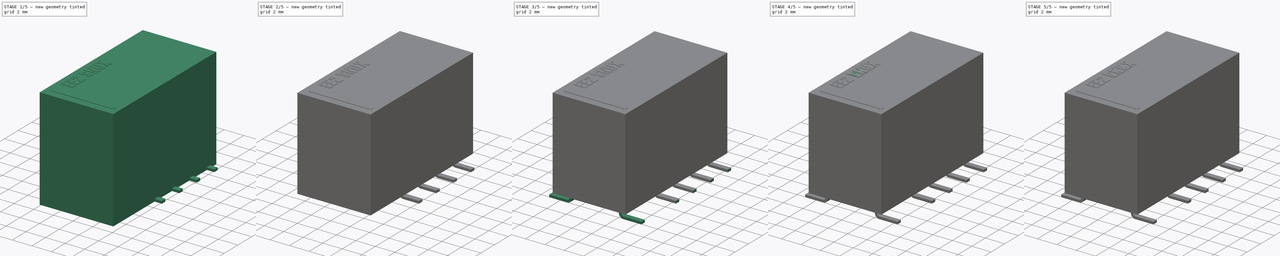
[diagram: build sequence overview — one tinted view per stage of 5, left to right]
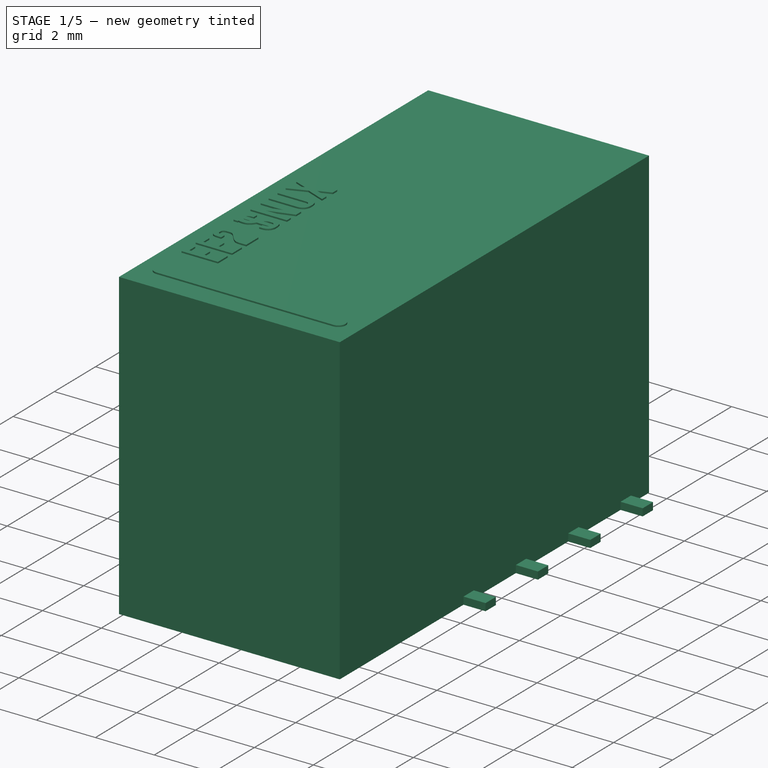
[diagram: stage 1 of 5 — iso view after this stage's code; geometry added in this stage tinted green]
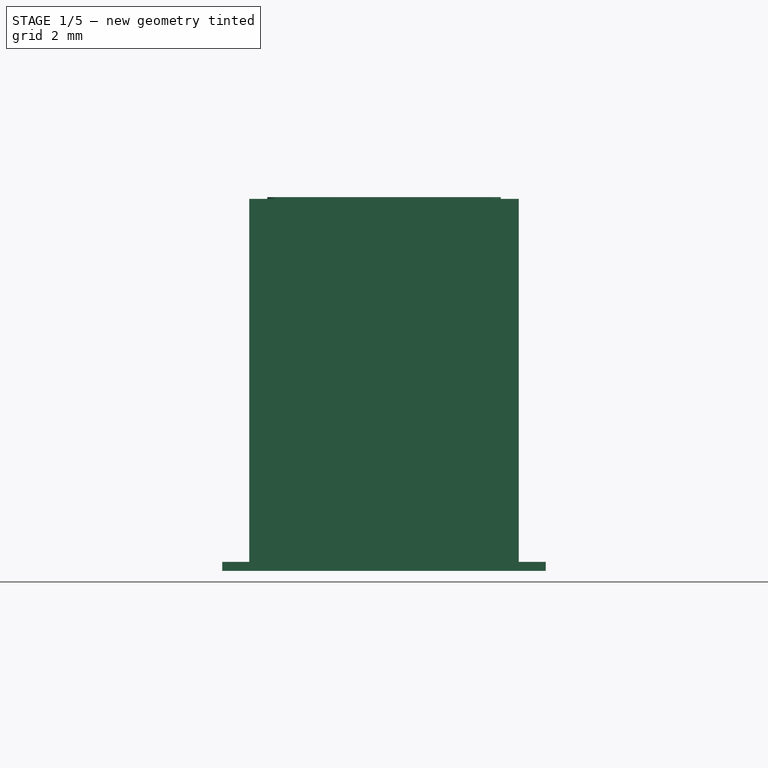
[diagram: stage 1 of 5 — front view after this stage's code; geometry added in this stage tinted green]
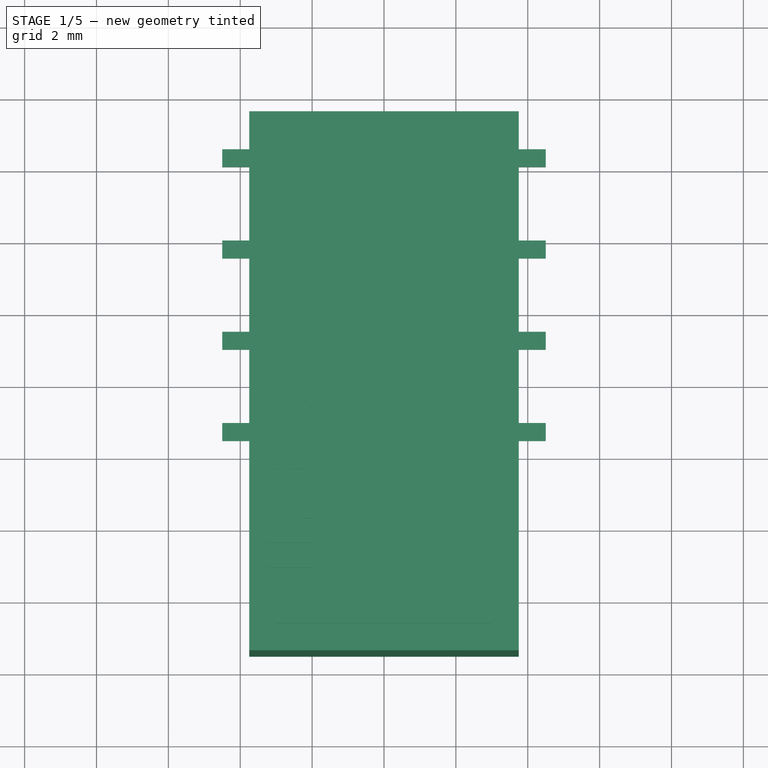
[diagram: stage 1 of 5 — top view after this stage's code; geometry added in this stage tinted green]
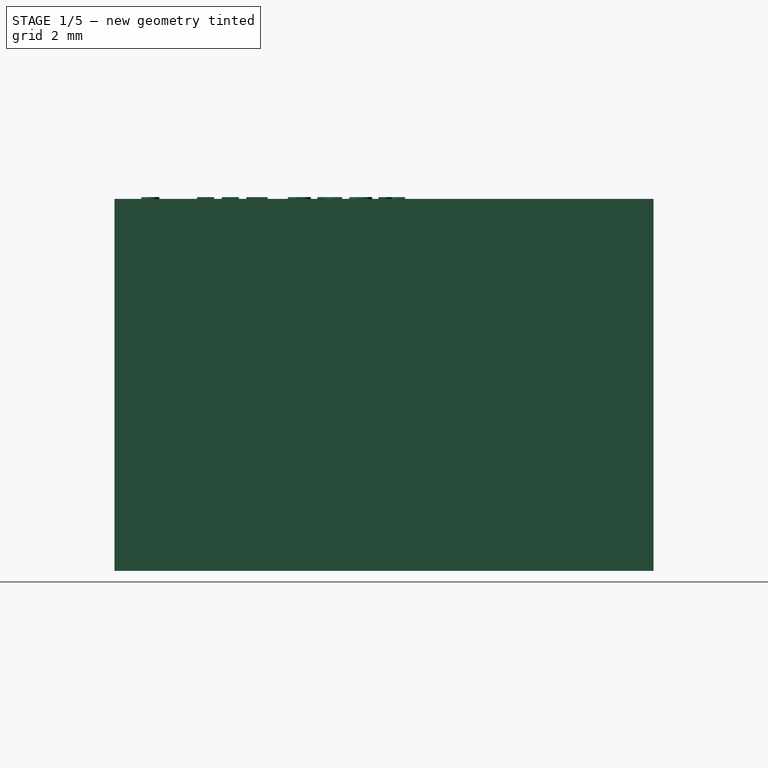
[diagram: stage 1 of 5 — right view after this stage's code; geometry added in this stage tinted green]
FCSTD DOCUMENT  (FreeCAD 0.19R16945 (Git))
Label: Kemet EE2 Series
License: All rights reserved
LicenseURL: http://en.wikipedia.org/wiki/All_rights_reserved
objects: Sketcher::SketchObject×60, PartDesign::Body×60, PartDesign::Pad×50, PartDesign::FeatureBase×40, PartDesign::Pocket×20, PartDesign::Fillet×20, Part::FeaturePython×20, Part::Part2DObjectPython×10, App::Part×10, Part::MultiFuse×3
note: 353 computed .brp shape members not serialized (recipe doc carries the construction recipe); baked Part::Feature solids carry a one-line shape summary decoded from their .brp

FEATURE [App::Part] Part006  label="EE2-SNUH"
  Group = -> [Body042,Body041,Body043,Body044,Body039,Body040,Array013,Array012]
  Origin = -> Origin051
FEATURE [Sketcher::SketchObject] Sketch050
  MapMode = 5
  Support = -> [XY_Plane058]
  sketch-geometry (4):
    g0: LineSegment StartX=3.75 StartY=-7.5 StartZ=0 EndX=-3.75 EndY=-7.5 EndZ=0
    g1: LineSegment StartX=-3.75 StartY=-7.5 StartZ=0 EndX=-3.75 EndY=7.5 EndZ=0
    g2: LineSegment StartX=-3.75 StartY=7.5 StartZ=0 EndX=3.75 EndY=7.5 EndZ=0
    g3: LineSegment StartX=3.75 StartY=7.5 StartZ=0 EndX=3.75 EndY=-7.5 EndZ=0
  constraints (10):
    c: Coincident(g0,g1)
    c: Coincident(g1,g2)
    c: Coincident(g2,g3)
    c: Coincident(g3,g0)
    c: Horizontal(g0)
    c: Vertical(g1)
    c: Symmetric(g1,g2,g-2)
    c: Symmetric(g2,g0,g-1)
    c: DistanceX(g2,g2) = 7.5
    c: DistanceY(g3,g3) = 15
FEATURE [PartDesign::Pad] Pad039  label="MainPad007"
  Length = 10
  Length2 = 100
  Profile = -> Sketch050
  Type = 0
FEATURE [App::Part] Part007  label="EE2-TNUH"
  Group = -> [Body048,Body047,Body049,Body050,Body045,Body046,Array015,Array014]
  Origin = -> Origin058
FEATURE [Sketcher::SketchObject] Sketch055
  MapMode = 5
  Placement = pos=(0,0,0) rot=(1,0,0;1.5708rad)
  Support = -> [XZ_Plane061]
  sketch-geometry (7):
    g0: LineSegment StartX=-2.665 StartY=1.35 StartZ=0 EndX=-2.665 EndY=0.25 EndZ=0
    g1: LineSegment StartX=-2.665 StartY=0.25 StartZ=0 EndX=-4.5 EndY=0.25 EndZ=0
    g2: LineSegment StartX=-4.5 StartY=0.25 StartZ=0 EndX=-4.5 EndY=0 EndZ=0
    g3: LineSegment StartX=-4.5 StartY=0 StartZ=0 EndX=-2.415 EndY=0 EndZ=0
    g4: LineSegment StartX=-2.415 StartY=0 StartZ=0 EndX=-2.415 EndY=1.35 EndZ=0
    g5: LineSegment StartX=-2.415 StartY=1.35 StartZ=0 EndX=-2.665 EndY=1.35 EndZ=0
    g6: GeomPoint X=-2.54 Y=1.35 Z=0
  constraints (19):
    c: Vertical(g0)
    c: Coincident(g0,g1)
    c: Horizontal(g1)
    c: Coincident(g1,g2)
    c: PointOnObject(g2,g-1)
    c: Vertical(g2)
    c: Coincident(g2,g3)
    c: Horizontal(g3)
    c: Coincident(g3,g4)
    c: Vertical(g4)
    c: Coincident(g4,g5)
    c: Coincident(g5,g0)
    c: Horizontal(g5)
    c: DistanceY(g2,g2) = 0.25
    c: Symmetric(g0,g4,g6)
    c: DistanceX(g6,g-1) = 2.54
    c: Equal(g5,g2)
    c: DistanceY(g4,g4) = 1.35
    c: DistanceX(g2,g-1) = 4.5
FEATURE [PartDesign::Pad] Pad047
  Length = 0.5
  Length2 = 100
  Midplane = true
  Placement = pos=(0,0,0) rot=(1,0,0;1.5708rad)
  Profile = -> Sketch055
  Type = 0
FEATURE [PartDesign::Fillet] Fillet016
  Base = -> Pad047 [Edge2]
  BaseFeature = -> Pad047
  Placement = pos=(0,0,0) rot=(1,0,0;1.5708rad)
  Radius = 0.25
FEATURE [PartDesign::Fillet] Fillet017
  Base = -> Fillet016 [Edge20]
  BaseFeature = -> Fillet016
  Placement = pos=(0,0,0) rot=(1,0,0;1.5708rad)
  Radius = 0.5
FEATURE [PartDesign::Body] Body055
  Group = -> [Sketch055,Pad047,Fillet016,Fillet017]
  Origin = -> Origin061
  Tip = -> Fillet017
FEATURE [PartDesign::FeatureBase] Clone032
  BaseFeature = -> Body055
FEATURE [PartDesign::Body] Body051
  BaseFeature = -> Body055
  Group = -> [Clone032]
  Origin = -> Origin065
  Placement = pos=(0,-6.33,0) rot=(0,0,1;3.14159rad)
  Tip = -> Clone032
FEATURE [PartDesign::FeatureBase] Clone033
  BaseFeature = -> Body055
FEATURE [PartDesign::FeatureBase] Clone035
  BaseFeature = -> Body051
  Placement = pos=(0,-6.33,0) rot=(0,0,1;3.14159rad)
FEATURE [PartDesign::Body] Body053
  BaseFeature = -> Body051
  Group = -> [Clone035]
  Origin = -> Origin064
  Placement = pos=(0,5.08,0) rot=(0,0,1;0rad)
  Tip = -> Clone035
FEATURE [Part::FeaturePython] Array017  # Draft array (typed FeaturePython)
  Angle = 360
  ArrayType = 0
  Axis = (0,0,1)
  Base = -> Body053
  Center = (0,0,0)
  Fuse = false
  IntervalAxis = (0,0,0)
  IntervalX = (1,0,0)
  IntervalY = (0,2.54,0)
  IntervalZ = (0,0,1)
  NumberPolar = 1
  NumberX = 1
  NumberY = 3
  NumberZ = 1
FEATURE [PartDesign::Body] Body056
  Group = -> [Clone033]
  Origin = -> Origin062
  Placement = pos=(0,-6.33,0) rot=(0,0,1;0rad)
  Tip = -> Clone033
FEATURE [PartDesign::FeatureBase] Clone034
  BaseFeature = -> Body056
  Placement = pos=(0,-6.33,0) rot=(0,0,1;0rad)
FEATURE [PartDesign::Body] Body052
  BaseFeature = -> Body056
  Group = -> [Clone034]
  Origin = -> Origin063
  Placement = pos=(0,5.08,0) rot=(0,0,1;0rad)
  Tip = -> Clone034
FEATURE [Part::FeaturePython] Array016  # Draft array (typed FeaturePython)
  Angle = 360
  ArrayType = 0
  Axis = (0,0,1)
  Base = -> Body052
  Center = (0,0,0)
  Fuse = false
  IntervalAxis = (0,0,0)
  IntervalX = (1,0,0)
  IntervalY = (0,2.54,0)
  IntervalZ = (0,0,1)
  NumberPolar = 1
  NumberX = 1
  NumberY = 3
  NumberZ = 1
FEATURE [Sketcher::SketchObject] Sketch058
  MapMode = 5
  Support = -> [XY_Plane064]
  sketch-geometry (4):
    g0: LineSegment StartX=3.75 StartY=-7.5 StartZ=0 EndX=-3.75 EndY=-7.5 EndZ=0
    g1: LineSegment StartX=-3.75 StartY=-7.5 StartZ=0 EndX=-3.75 EndY=7.5 EndZ=0
    g2: LineSegment StartX=-3.75 StartY=7.5 StartZ=0 EndX=3.75 EndY=7.5 EndZ=0
    g3: LineSegment StartX=3.75 StartY=7.5 StartZ=0 EndX=3.75 EndY=-7.5 EndZ=0
  constraints (10):
    c: Coincident(g0,g1)
    c: Coincident(g1,g2)
    c: Coincident(g2,g3)
    c: Coincident(g3,g0)
    c: Horizontal(g0)
    c: Vertical(g1)
    c: Symmetric(g1,g2,g-2)
    c: Symmetric(g2,g0,g-1)
    c: DistanceX(g2,g2) = 7.5
    c: DistanceY(g3,g3) = 15
FEATURE [PartDesign::Pad] Pad045  label="MainPad008"
  Length = 10.35
  Length2 = 100
  Profile = -> Sketch058
  Type = 0
FEATURE [Sketcher::SketchObject] Sketch057
  ExternalGeometry = -> [Pad045]
  MapMode = 5
  Placement = pos=(-3.75,0,0) rot=(0.57735,-0.57735,-0.57735;2.0944rad)
  Support = -> [Pad045]
  sketch-geometry (4):
    g0: LineSegment StartX=-7.5 StartY=0 StartZ=0 EndX=7.5 EndY=0 EndZ=0
    g1: LineSegment StartX=7.5 StartY=0 StartZ=0 EndX=7.5 EndY=1.35 EndZ=0
    g2: LineSegment StartX=7.5 StartY=1.35 StartZ=0 EndX=-7.5 EndY=1.35 EndZ=0
    g3: LineSegment StartX=-7.5 StartY=1.35 StartZ=0 EndX=-7.5 EndY=0 EndZ=0
  constraints (11):
    c: Coincident(g0,g1)
    c: Coincident(g1,g2)
    c: Coincident(g2,g3)
    c: Coincident(g3,g0)
    c: Horizontal(g0)
    c: Horizontal(g2)
    c: Vertical(g1)
    c: Vertical(g3)
    c: Coincident(g0,g-3)
    c: PointOnObject(g1,g-4)
    c: DistanceY(g1,g1) = 1.35
FEATURE [PartDesign::Pocket] Pocket019  label="BottomPocket017"
  BaseFeature = -> Pad045
  Length = 5
  Length2 = 100
  Profile = -> Sketch057
  Type = 1
FEATURE [Sketcher::SketchObject] Sketch056
  ExternalGeometry = -> [Pocket019]
  MapMode = 5
  Placement = pos=(0,0,1.35) rot=(1,0,0;3.14159rad)
  Support = -> [Pocket019]
  sketch-geometry (4):
    g0: LineSegment StartX=-3.55 StartY=7.3 StartZ=0 EndX=3.55 EndY=7.3 EndZ=0
    g1: LineSegment StartX=3.55 StartY=7.3 StartZ=0 EndX=3.55 EndY=-7.3 EndZ=0
    g2: LineSegment StartX=3.55 StartY=-7.3 StartZ=0 EndX=-3.55 EndY=-7.3 EndZ=0
    g3: LineSegment StartX=-3.55 StartY=-7.3 StartZ=0 EndX=-3.55 EndY=7.3 EndZ=0
  constraints (10):
    c: Coincident(g0,g1)
    c: Coincident(g1,g2)
    c: Coincident(g2,g3)
    c: Coincident(g3,g0)
    c: Horizontal(g2)
    c: Vertical(g3)
    c: Symmetric(g0,g0,g-2)
    c: Symmetric(g0,g1,g-1)
    c: DistanceX(g0,g-3) = 0.2
    c: DistanceY(g0,g-3) = 0.2
FEATURE [PartDesign::Pocket] Pocket018  label="BottomPocket016"
  BaseFeature = -> Pocket019
  Length = 0.1
  Length2 = 100
  Profile = -> Sketch056
  Type = 0
FEATURE [Sketcher::SketchObject] Sketch059
  MapMode = 5
  Placement = pos=(0,0,1.45) rot=(1,0,0;3.14159rad)
  Support = -> [Pocket018]
  sketch-geometry (8):
    g0: LineSegment StartX=-1.62865 StartY=5.15007 StartZ=0 EndX=1.62865 EndY=5.15007 EndZ=0
    g1: LineSegment StartX=2.35483 StartY=4.42389 StartZ=0 EndX=2.35483 EndY=-4.42389 EndZ=0
    g2: LineSegment StartX=1.62865 StartY=-5.15007 StartZ=0 EndX=-1.62865 EndY=-5.15007 EndZ=0
    g3: LineSegment StartX=-2.35483 StartY=-4.42389 StartZ=0 EndX=-2.35483 EndY=4.42389 EndZ=0
    g4: ArcOfCircle CenterX=-1.62865 CenterY=4.42389 CenterZ=0 NormalX=0 NormalY=0 NormalZ=1 AngleXU=0 Radius=0.726182 StartAngle=1.5708 EndAngle=3.14159
    g5: ArcOfCircle CenterX=1.62865 CenterY=4.42389 CenterZ=0 NormalX=0 NormalY=0 NormalZ=1 AngleXU=0 Radius=0.726182 StartAngle=0 EndAngle=1.5708
    g6: ArcOfCircle CenterX=1.62865 CenterY=-4.42389 CenterZ=0 NormalX=0 NormalY=0 NormalZ=1 AngleXU=0 Radius=0.726182 StartAngle=4.71239 EndAngle=6.28319
    g7: ArcOfCircle CenterX=-1.62865 CenterY=-4.42389 CenterZ=0 NormalX=0 NormalY=0 NormalZ=1 AngleXU=0 Radius=0.726182 StartAngle=3.14159 EndAngle=4.71239
  constraints (15):
    c: Horizontal(g0)
    c: Horizontal(g2)
    c: Vertical(g1)
    c: Vertical(g3)
    c: Tangent(g0,g4) = 1.5708
    c: Tangent(g3,g4) = 1.5708
    c: Tangent(g0,g5) = 1.5708
    c: Tangent(g1,g5) = 1.5708
    c: Tangent(g1,g6) = 1.5708
    c: Tangent(g2,g6) = 1.5708
    c: Tangent(g2,g7) = 1.5708
    c: Tangent(g3,g7) = 1.5708
    c: Equal(g7,g6)
    c: Symmetric(g3,g1,g-2)
    c: Symmetric(g0,g2,g-1)
FEATURE [PartDesign::Pad] Pad048  label="BottomPad008"
  BaseFeature = -> Pocket018
  Length = 0.05
  Length2 = 100
  Profile = -> Sketch059
  Type = 0
FEATURE [Sketcher::SketchObject] Sketch054
  ExternalGeometry = -> [Pad048]
  MapMode = 5
  Placement = pos=(0,0,10.35) rot=(0,0,1;0rad)
  Support = -> [Pad048]
  sketch-geometry (4):
    g0: ArcOfCircle CenterX=-3 CenterY=-6.5 CenterZ=0 NormalX=0 NormalY=0 NormalZ=1 AngleXU=0 Radius=0.25 StartAngle=1.5708 EndAngle=4.71239
    g1: ArcOfCircle CenterX=3 CenterY=-6.5 CenterZ=0 NormalX=0 NormalY=0 NormalZ=1 AngleXU=0 Radius=0.25 StartAngle=4.71239 EndAngle=7.85398
    g2: LineSegment StartX=-3 StartY=-6.75 StartZ=0 EndX=3 EndY=-6.75 EndZ=0
    g3: LineSegment StartX=-3 StartY=-6.25 StartZ=0 EndX=3 EndY=-6.25 EndZ=0
  constraints (9):
    c: Tangent(g0,g3) = 1.5708
    c: Tangent(g0,g2) = -1.5708
    c: Tangent(g2,g1) = -1.5708
    c: Tangent(g3,g1) = 1.5708
    c: Horizontal(g2)
    c: Symmetric(g1,g0,g-2)
    c: DistanceY(g1,g1) = 0.5
    c: DistanceY(g-3,g0) = 1
    c: DistanceX(g-3,g0) = 0.75
FEATURE [PartDesign::Pad] Pad046  label="CoilMarkingPad008"
  BaseFeature = -> Pad048
  Length = 0.05
  Length2 = 100
  Profile = -> Sketch054
  Type = 0
FEATURE [Part::Part2DObjectPython] ShapeString008  # Draft 2D object (typed FeaturePython)
  AttachmentOffset = pos=(-1,-1,0) rot=(0,0,-1;1.5708rad)
  FontFile = <userpath>/Desktop/GitHub/freecad-projects/00-fonts/coolvetica condensed rg.ttf
  MapMode = 6
  Placement = pos=(-2,-5.25,10.35) rot=(0,0,1;1.5708rad)
  Size = 0.75
  String = EE2 SNUX
  Support = -> [Pad046]
  Tracking = 0.125
FEATURE [PartDesign::Pad] Pad044  label="ShapeStringPad008"
  BaseFeature = -> Pad046
  Length = 0.05
  Length2 = 100
  Profile = -> ShapeString008
  Refine = true
  Type = 0
FEATURE [PartDesign::Body] Body054  label="EE2-SNUX_Body"
  Group = -> [Sketch058,Pad045,Sketch057,Pocket019,Sketch056,Pocket018,Sketch059,Pad048,Sketch054,Pad046,ShapeString008,Pad044]
  Origin = -> Origin060
  Tip = -> Pad044
FEATURE [App::Part] Part008  label="EE2-SNUX"
  Group = -> [Body054,Body055,Body056,Body051,Body052,Body053,Array016,Array017]
  Origin = -> Origin059
FEATURE [Sketcher::SketchObject] Sketch061
  MapMode = 5
  Placement = pos=(0,0,0) rot=(1,0,0;1.5708rad)
  Support = -> [XZ_Plane068]
  sketch-geometry (7):
    g0: LineSegment StartX=-2.665 StartY=1.35 StartZ=0 EndX=-2.665 EndY=0.25 EndZ=0
    g1: LineSegment StartX=-2.665 StartY=0.25 StartZ=0 EndX=-4.5 EndY=0.25 EndZ=0
    g2: LineSegment StartX=-4.5 StartY=0.25 StartZ=0 EndX=-4.5 EndY=0 EndZ=0
    g3: LineSegment StartX=-4.5 StartY=0 StartZ=0 EndX=-2.415 EndY=0 EndZ=0
    g4: LineSegment StartX=-2.415 StartY=0 StartZ=0 EndX=-2.415 EndY=1.35 EndZ=0
    g5: LineSegment StartX=-2.415 StartY=1.35 StartZ=0 EndX=-2.665 EndY=1.35 EndZ=0
    g6: GeomPoint X=-2.54 Y=1.35 Z=0
  constraints (19):
    c: Vertical(g0)
    c: Coincident(g0,g1)
    c: Horizontal(g1)
    c: Coincident(g1,g2)
    c: PointOnObject(g2,g-1)
    c: Vertical(g2)
    c: Coincident(g2,g3)
    c: Horizontal(g3)
    c: Coincident(g3,g4)
    c: Vertical(g4)
    c: Coincident(g4,g5)
    c: Coincident(g5,g0)
    c: Horizontal(g5)
    c: DistanceY(g2,g2) = 0.25
    c: Symmetric(g0,g4,g6)
    c: DistanceX(g6,g-1) = 2.54
    c: Equal(g5,g2)
    c: DistanceY(g4,g4) = 1.35
    c: DistanceX(g2,g-1) = 4.5
FEATURE [PartDesign::Pad] Pad052
  Length = 0.5
  Length2 = 100
  Midplane = true
  Placement = pos=(0,0,0) rot=(1,0,0;1.5708rad)
  Profile = -> Sketch061
  Type = 0
FEATURE [PartDesign::Fillet] Fillet018
  Base = -> Pad052 [Edge2]
  BaseFeature = -> Pad052
  Placement = pos=(0,0,0) rot=(1,0,0;1.5708rad)
  Radius = 0.25
FEATURE [PartDesign::Fillet] Fillet019
  Base = -> Fillet018 [Edge20]
  BaseFeature = -> Fillet018
  Placement = pos=(0,0,0) rot=(1,0,0;1.5708rad)
  Radius = 0.5
FEATURE [PartDesign::Body] Body061
  Group = -> [Sketch061,Pad052,Fillet018,Fillet019]
  Origin = -> Origin068
  Tip = -> Fillet019
FEATURE [PartDesign::FeatureBase] Clone036
  BaseFeature = -> Body061
FEATURE [PartDesign::Body] Body057
  BaseFeature = -> Body061
  Group = -> [Clone036]
  Origin = -> Origin072
  Placement = pos=(0,-6.33,0) rot=(0,0,1;3.14159rad)
  Tip = -> Clone036
FEATURE [PartDesign::FeatureBase] Clone037
  BaseFeature = -> Body061
FEATURE [PartDesign::FeatureBase] Clone039
  BaseFeature = -> Body057
  Placement = pos=(0,-6.33,0) rot=(0,0,1;3.14159rad)
FEATURE [PartDesign::Body] Body059
  BaseFeature = -> Body057
  Group = -> [Clone039]
  Origin = -> Origin071
  Placement = pos=(0,5.08,0) rot=(0,0,1;0rad)
  Tip = -> Clone039
FEATURE [Part::FeaturePython] Array019  # Draft array (typed FeaturePython)
  Angle = 360
  ArrayType = 0
  Axis = (0,0,1)
  Base = -> Body059
  Center = (0,0,0)
  Fuse = false
  IntervalAxis = (0,0,0)
  IntervalX = (1,0,0)
  IntervalY = (0,2.54,0)
  IntervalZ = (0,0,1)
  NumberPolar = 1
  NumberX = 1
  NumberY = 4
  NumberZ = 1
FEATURE [PartDesign::Body] Body062
  Group = -> [Clone037]
  Origin = -> Origin069
  Placement = pos=(0,-6.33,0) rot=(0,0,1;0rad)
  Tip = -> Clone037
FEATURE [PartDesign::FeatureBase] Clone038
  BaseFeature = -> Body062
  Placement = pos=(0,-6.33,0) rot=(0,0,1;0rad)
FEATURE [PartDesign::Body] Body058
  BaseFeature = -> Body062
  Group = -> [Clone038]
  Origin = -> Origin070
  Placement = pos=(0,5.08,0) rot=(0,0,1;0rad)
  Tip = -> Clone038
FEATURE [Part::FeaturePython] Array018  # Draft array (typed FeaturePython)
  Angle = 360
  ArrayType = 0
  Axis = (0,0,1)
  Base = -> Body058
  Center = (0,0,0)
  Fuse = false
  IntervalAxis = (0,0,0)
  IntervalX = (1,0,0)
  IntervalY = (0,2.54,0)
  IntervalZ = (0,0,1)
  NumberPolar = 1
  NumberX = 1
  NumberY = 4
  NumberZ = 1
FEATURE [Sketcher::SketchObject] Sketch064
  MapMode = 5
  Support = -> [XY_Plane071]
  sketch-geometry (4):
    g0: LineSegment StartX=3.75 StartY=-7.5 StartZ=0 EndX=-3.75 EndY=-7.5 EndZ=0
    g1: LineSegment StartX=-3.75 StartY=-7.5 StartZ=0 EndX=-3.75 EndY=7.5 EndZ=0
    g2: LineSegment StartX=-3.75 StartY=7.5 StartZ=0 EndX=3.75 EndY=7.5 EndZ=0
    g3: LineSegment StartX=3.75 StartY=7.5 StartZ=0 EndX=3.75 EndY=-7.5 EndZ=0
  constraints (10):
    c: Coincident(g0,g1)
    c: Coincident(g1,g2)
    c: Coincident(g2,g3)
    c: Coincident(g3,g0)
    c: Horizontal(g0)
    c: Vertical(g1)
    c: Symmetric(g1,g2,g-2)
    c: Symmetric(g2,g0,g-1)
    c: DistanceX(g2,g2) = 7.5
    c: DistanceY(g3,g3) = 15
FEATURE [PartDesign::Pad] Pad050  label="MainPad009"
  Length = 10.35
  Length2 = 100
  Profile = -> Sketch064
  Type = 0
FEATURE [Sketcher::SketchObject] Sketch063
  ExternalGeometry = -> [Pad050]
  MapMode = 5
  Placement = pos=(-3.75,0,0) rot=(0.57735,-0.57735,-0.57735;2.0944rad)
  Support = -> [Pad050]
  sketch-geometry (4):
    g0: LineSegment StartX=-7.5 StartY=0 StartZ=0 EndX=7.5 EndY=0 EndZ=0
    g1: LineSegment StartX=7.5 StartY=0 StartZ=0 EndX=7.5 EndY=1.35 EndZ=0
    g2: LineSegment StartX=7.5 StartY=1.35 StartZ=0 EndX=-7.5 EndY=1.35 EndZ=0
    g3: LineSegment StartX=-7.5 StartY=1.35 StartZ=0 EndX=-7.5 EndY=0 EndZ=0
  constraints (11):
    c: Coincident(g0,g1)
    c: Coincident(g1,g2)
    c: Coincident(g2,g3)
    c: Coincident(g3,g0)
    c: Horizontal(g0)
    c: Horizontal(g2)
    c: Vertical(g1)
    c: Vertical(g3)
    c: Coincident(g0,g-3)
    c: PointOnObject(g1,g-4)
    c: DistanceY(g1,g1) = 1.35
FEATURE [PartDesign::Pocket] Pocket021  label="BottomPocket019"
  BaseFeature = -> Pad050
  Length = 5
  Length2 = 100
  Profile = -> Sketch063
  Type = 1
FEATURE [Sketcher::SketchObject] Sketch062
  ExternalGeometry = -> [Pocket021]
  MapMode = 5
  Placement = pos=(0,0,1.35) rot=(1,0,0;3.14159rad)
  Support = -> [Pocket021]
  sketch-geometry (4):
    g0: LineSegment StartX=-3.55 StartY=7.3 StartZ=0 EndX=3.55 EndY=7.3 EndZ=0
    g1: LineSegment StartX=3.55 StartY=7.3 StartZ=0 EndX=3.55 EndY=-7.3 EndZ=0
    g2: LineSegment StartX=3.55 StartY=-7.3 StartZ=0 EndX=-3.55 EndY=-7.3 EndZ=0
    g3: LineSegment StartX=-3.55 StartY=-7.3 StartZ=0 EndX=-3.55 EndY=7.3 EndZ=0
  constraints (10):
    c: Coincident(g0,g1)
    c: Coincident(g1,g2)
    c: Coincident(g2,g3)
    c: Coincident(g3,g0)
    c: Horizontal(g2)
    c: Vertical(g3)
    c: Symmetric(g0,g0,g-2)
    c: Symmetric(g0,g1,g-1)
    c: DistanceX(g0,g-3) = 0.2
    c: DistanceY(g0,g-3) = 0.2
FEATURE [PartDesign::Pocket] Pocket020  label="BottomPocket018"
  BaseFeature = -> Pocket021
  Length = 0.1
  Length2 = 100
  Profile = -> Sketch062
  Type = 0
FEATURE [Sketcher::SketchObject] Sketch065
  MapMode = 5
  Placement = pos=(0,0,1.45) rot=(1,0,0;3.14159rad)
  Support = -> [Pocket020]
  sketch-geometry (8):
    g0: LineSegment StartX=-1.62865 StartY=5.15007 StartZ=0 EndX=1.62865 EndY=5.15007 EndZ=0
    g1: LineSegment StartX=2.35483 StartY=4.42389 StartZ=0 EndX=2.35483 EndY=-4.42389 EndZ=0
    g2: LineSegment StartX=1.62865 StartY=-5.15007 StartZ=0 EndX=-1.62865 EndY=-5.15007 EndZ=0
    g3: LineSegment StartX=-2.35483 StartY=-4.42389 StartZ=0 EndX=-2.35483 EndY=4.42389 EndZ=0
    g4: ArcOfCircle CenterX=-1.62865 CenterY=4.42389 CenterZ=0 NormalX=0 NormalY=0 NormalZ=1 AngleXU=0 Radius=0.726182 StartAngle=1.5708 EndAngle=3.14159
    g5: ArcOfCircle CenterX=1.62865 CenterY=4.42389 CenterZ=0 NormalX=0 NormalY=0 NormalZ=1 AngleXU=0 Radius=0.726182 StartAngle=0 EndAngle=1.5708
    g6: ArcOfCircle CenterX=1.62865 CenterY=-4.42389 CenterZ=0 NormalX=0 NormalY=0 NormalZ=1 AngleXU=0 Radius=0.726182 StartAngle=4.71239 EndAngle=6.28319
    g7: ArcOfCircle CenterX=-1.62865 CenterY=-4.42389 CenterZ=0 NormalX=0 NormalY=0 NormalZ=1 AngleXU=0 Radius=0.726182 StartAngle=3.14159 EndAngle=4.71239
  constraints (15):
    c: Horizontal(g0)
    c: Horizontal(g2)
    c: Vertical(g1)
    c: Vertical(g3)
    c: Tangent(g0,g4) = 1.5708
    c: Tangent(g3,g4) = 1.5708
    c: Tangent(g0,g5) = 1.5708
    c: Tangent(g1,g5) = 1.5708
    c: Tangent(g1,g6) = 1.5708
    c: Tangent(g2,g6) = 1.5708
    c: Tangent(g2,g7) = 1.5708
    c: Tangent(g3,g7) = 1.5708
    c: Equal(g7,g6)
    c: Symmetric(g3,g1,g-2)
    c: Symmetric(g0,g2,g-1)
FEATURE [PartDesign::Pad] Pad053  label="BottomPad009"
  BaseFeature = -> Pocket020
  Length = 0.05
  Length2 = 100
  Profile = -> Sketch065
  Type = 0
FEATURE [Sketcher::SketchObject] Sketch060
  ExternalGeometry = -> [Pad053]
  MapMode = 5
  Placement = pos=(0,0,10.35) rot=(0,0,1;0rad)
  Support = -> [Pad053]
  sketch-geometry (4):
    g0: ArcOfCircle CenterX=-3 CenterY=-6.5 CenterZ=0 NormalX=0 NormalY=0 NormalZ=1 AngleXU=0 Radius=0.25 StartAngle=1.5708 EndAngle=4.71239
    g1: ArcOfCircle CenterX=3 CenterY=-6.5 CenterZ=0 NormalX=0 NormalY=0 NormalZ=1 AngleXU=0 Radius=0.25 StartAngle=4.71239 EndAngle=7.85398
    g2: LineSegment StartX=-3 StartY=-6.75 StartZ=0 EndX=3 EndY=-6.75 EndZ=0
    g3: LineSegment StartX=-3 StartY=-6.25 StartZ=0 EndX=3 EndY=-6.25 EndZ=0
  constraints (9):
    c: Tangent(g0,g3) = 1.5708
    c: Tangent(g0,g2) = -1.5708
    c: Tangent(g2,g1) = -1.5708
    c: Tangent(g3,g1) = 1.5708
    c: Horizontal(g2)
    c: Symmetric(g1,g0,g-2)
    c: DistanceY(g1,g1) = 0.5
    c: DistanceY(g-3,g0) = 1
    c: DistanceX(g-3,g0) = 0.75
FEATURE [PartDesign::Pad] Pad051  label="CoilMarkingPad009"
  BaseFeature = -> Pad053
  Length = 0.05
  Length2 = 100
  Profile = -> Sketch060
  Type = 0
FEATURE [Part::Part2DObjectPython] ShapeString009  # Draft 2D object (typed FeaturePython)
  AttachmentOffset = pos=(-1,-1,0) rot=(0,0,-1;1.5708rad)
  FontFile = <userpath>/Desktop/GitHub/freecad-projects/00-fonts/coolvetica condensed rg.ttf
  MapMode = 6
  Placement = pos=(-2,-5.25,10.35) rot=(0,0,1;1.5708rad)
  Size = 0.75
  String = EE2 TNUX
  Support = -> [Pad051]
  Tracking = 0.125
FEATURE [PartDesign::Pad] Pad049  label="ShapeStringPad009"
  BaseFeature = -> Pad051
  Length = 0.05
  Length2 = 100
  Profile = -> ShapeString009
  Refine = true
  Type = 0
FEATURE [PartDesign::Body] Body060  label="EE2-TNUX_Body"
  Group = -> [Sketch064,Pad050,Sketch063,Pocket021,Sketch062,Pocket020,Sketch065,Pad053,Sketch060,Pad051,ShapeString009,Pad049]
  Origin = -> Origin067
  Tip = -> Pad049
FEATURE [App::Part] Part009  label="EE2-TNUX"
  Group = -> [Body060,Body061,Body062,Body057,Body058,Body059,Array018,Array019]
  Origin = -> Origin066
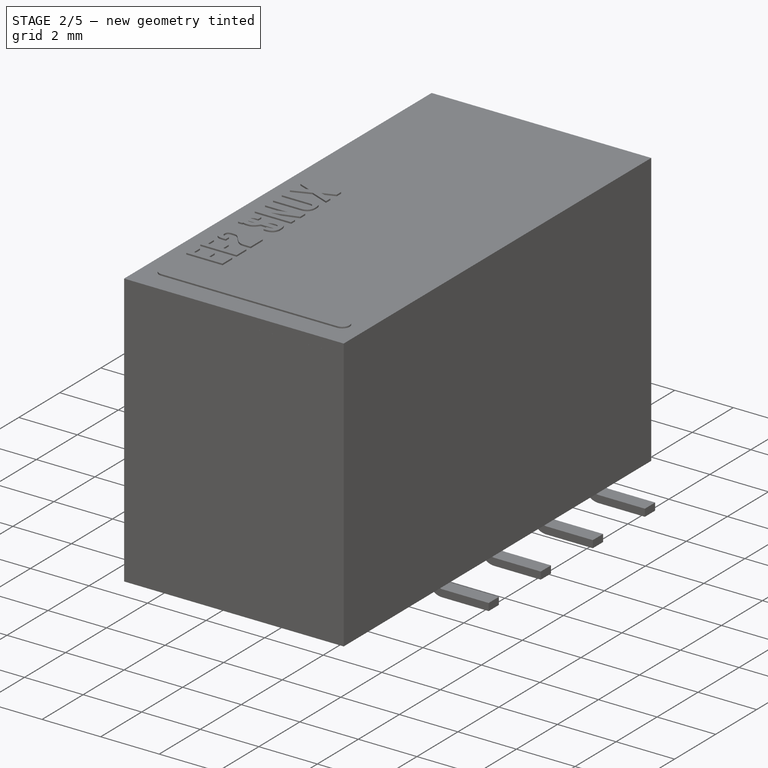
[diagram: stage 2 of 5 — iso view after this stage's code; geometry added in this stage tinted green]
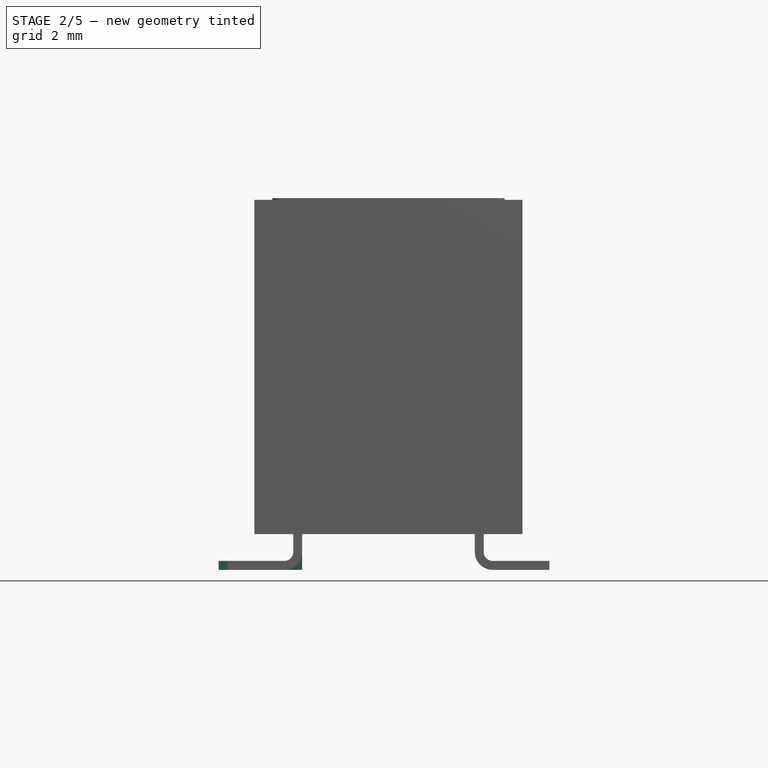
[diagram: stage 2 of 5 — front view after this stage's code; geometry added in this stage tinted green]
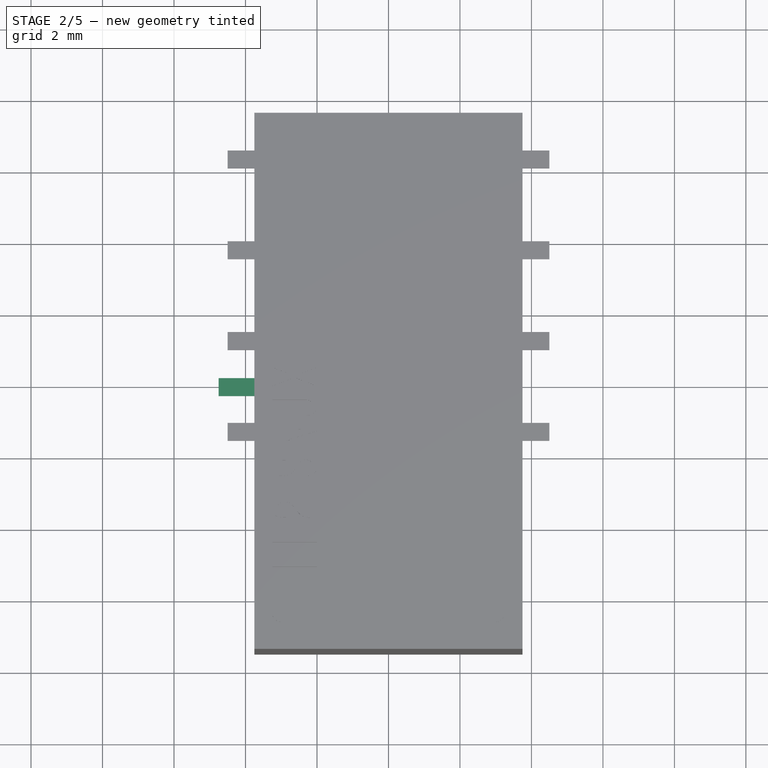
[diagram: stage 2 of 5 — top view after this stage's code; geometry added in this stage tinted green]
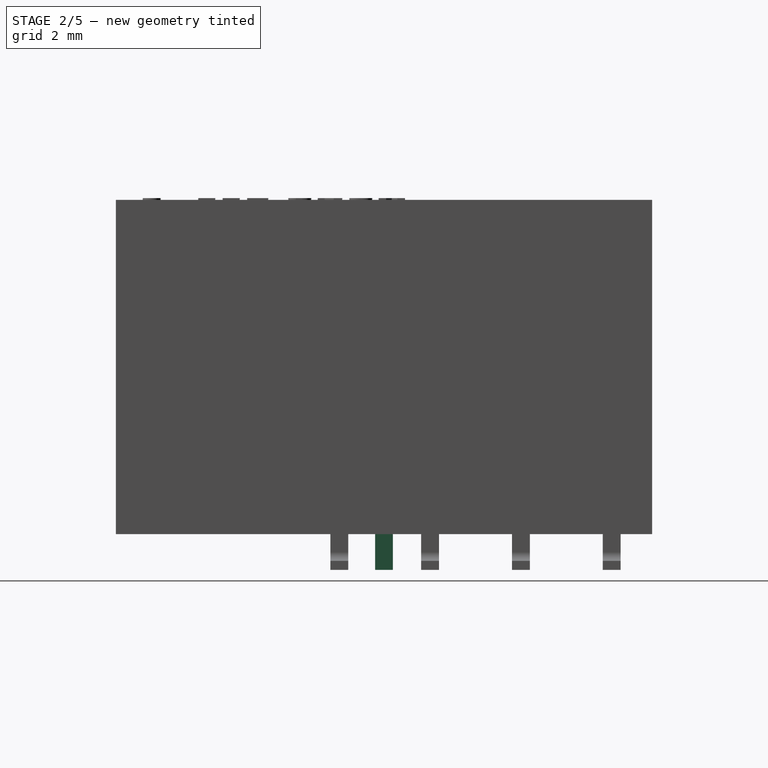
[diagram: stage 2 of 5 — right view after this stage's code; geometry added in this stage tinted green]
FEATURE [Sketcher::SketchObject] Sketch040
  MapMode = 5
  Placement = pos=(0,0,1.1) rot=(1,0,0;3.14159rad)
  Support = -> [Pocket013]
  sketch-geometry (8):
    g0: LineSegment StartX=-1.62865 StartY=5.15007 StartZ=0 EndX=1.62865 EndY=5.15007 EndZ=0
    g1: LineSegment StartX=2.35483 StartY=4.42389 StartZ=0 EndX=2.35483 EndY=-4.42389 EndZ=0
    g2: LineSegment StartX=1.62865 StartY=-5.15007 StartZ=0 EndX=-1.62865 EndY=-5.15007 EndZ=0
    g3: LineSegment StartX=-2.35483 StartY=-4.42389 StartZ=0 EndX=-2.35483 EndY=4.42389 EndZ=0
    g4: ArcOfCircle CenterX=-1.62865 CenterY=4.42389 CenterZ=0 NormalX=0 NormalY=0 NormalZ=1 AngleXU=0 Radius=0.726182 StartAngle=1.5708 EndAngle=3.14159
    g5: ArcOfCircle CenterX=1.62865 CenterY=4.42389 CenterZ=0 NormalX=0 NormalY=0 NormalZ=1 AngleXU=0 Radius=0.726182 StartAngle=0 EndAngle=1.5708
    g6: ArcOfCircle CenterX=1.62865 CenterY=-4.42389 CenterZ=0 NormalX=0 NormalY=0 NormalZ=1 AngleXU=0 Radius=0.726182 StartAngle=4.71239 EndAngle=6.28319
    g7: ArcOfCircle CenterX=-1.62865 CenterY=-4.42389 CenterZ=0 NormalX=0 NormalY=0 NormalZ=1 AngleXU=0 Radius=0.726182 StartAngle=3.14159 EndAngle=4.71239
  constraints (15):
    c: Horizontal(g0)
    c: Horizontal(g2)
    c: Vertical(g1)
    c: Vertical(g3)
    c: Tangent(g0,g4) = 1.5708
    c: Tangent(g3,g4) = 1.5708
    c: Tangent(g0,g5) = 1.5708
    c: Tangent(g1,g5) = 1.5708
    c: Tangent(g1,g6) = 1.5708
    c: Tangent(g2,g6) = 1.5708
    c: Tangent(g2,g7) = 1.5708
    c: Tangent(g3,g7) = 1.5708
    c: Equal(g7,g6)
    c: Symmetric(g3,g1,g-2)
    c: Symmetric(g0,g2,g-1)
FEATURE [PartDesign::Pad] Pad031
  Length = 0.5
  Length2 = 100
  Midplane = true
  Placement = pos=(0,0,0) rot=(1,0,0;1.5708rad)
  Profile = -> Sketch036
  Type = 0
FEATURE [App::Part] Part005  label="EE2-TNU"
  Group = -> [Body036,Body037,Body035,Body033,Body034,Body038,Array010,Array011,Fusion002]
  Origin = -> Origin042
FEATURE [Sketcher::SketchObject] Sketch044
  MapMode = 5
  Support = -> [XY_Plane051]
  sketch-geometry (4):
    g0: LineSegment StartX=3.75 StartY=-7.5 StartZ=0 EndX=-3.75 EndY=-7.5 EndZ=0
    g1: LineSegment StartX=-3.75 StartY=-7.5 StartZ=0 EndX=-3.75 EndY=7.5 EndZ=0
    g2: LineSegment StartX=-3.75 StartY=7.5 StartZ=0 EndX=3.75 EndY=7.5 EndZ=0
    g3: LineSegment StartX=3.75 StartY=7.5 StartZ=0 EndX=3.75 EndY=-7.5 EndZ=0
  constraints (10):
    c: Coincident(g0,g1)
    c: Coincident(g1,g2)
    c: Coincident(g2,g3)
    c: Coincident(g3,g0)
    c: Horizontal(g0)
    c: Vertical(g1)
    c: Symmetric(g1,g2,g-2)
    c: Symmetric(g2,g0,g-1)
    c: DistanceX(g2,g2) = 7.5
    c: DistanceY(g3,g3) = 15
FEATURE [PartDesign::Pad] Pad034  label="MainPad006"
  Length = 10
  Length2 = 100
  Profile = -> Sketch044
  Type = 0
FEATURE [Sketcher::SketchObject] Sketch043
  ExternalGeometry = -> [Pad034]
  MapMode = 5
  Placement = pos=(-3.75,0,0) rot=(0.57735,-0.57735,-0.57735;2.0944rad)
  Support = -> [Pad034]
  sketch-geometry (4):
    g0: LineSegment StartX=-7.5 StartY=0 StartZ=0 EndX=7.5 EndY=0 EndZ=0
    g1: LineSegment StartX=7.5 StartY=0 StartZ=0 EndX=7.5 EndY=1 EndZ=0
    g2: LineSegment StartX=7.5 StartY=1 StartZ=0 EndX=-7.5 EndY=1 EndZ=0
    g3: LineSegment StartX=-7.5 StartY=1 StartZ=0 EndX=-7.5 EndY=0 EndZ=0
  constraints (11):
    c: Coincident(g0,g1)
    c: Coincident(g1,g2)
    c: Coincident(g2,g3)
    c: Coincident(g3,g0)
    c: Horizontal(g0)
    c: Horizontal(g2)
    c: Vertical(g1)
    c: Vertical(g3)
    c: Coincident(g0,g-3)
    c: PointOnObject(g1,g-4)
    c: DistanceY(g1,g1) = 1
FEATURE [PartDesign::Pocket] Pocket014  label="BottomPocket012"
  BaseFeature = -> Pad034
  Length = 5
  Length2 = 100
  Profile = -> Sketch043
  Type = 1
FEATURE [Sketcher::SketchObject] Sketch042
  ExternalGeometry = -> [Pocket014]
  MapMode = 5
  Placement = pos=(0,0,1) rot=(1,0,0;3.14159rad)
  Support = -> [Pocket014]
  sketch-geometry (4):
    g0: LineSegment StartX=-3.55 StartY=7.3 StartZ=0 EndX=3.55 EndY=7.3 EndZ=0
    g1: LineSegment StartX=3.55 StartY=7.3 StartZ=0 EndX=3.55 EndY=-7.3 EndZ=0
    g2: LineSegment StartX=3.55 StartY=-7.3 StartZ=0 EndX=-3.55 EndY=-7.3 EndZ=0
    g3: LineSegment StartX=-3.55 StartY=-7.3 StartZ=0 EndX=-3.55 EndY=7.3 EndZ=0
  constraints (10):
    c: Coincident(g0,g1)
    c: Coincident(g1,g2)
    c: Coincident(g2,g3)
    c: Coincident(g3,g0)
    c: Horizontal(g2)
    c: Vertical(g3)
    c: Symmetric(g0,g0,g-2)
    c: Symmetric(g0,g1,g-1)
    c: DistanceX(g0,g-3) = 0.2
    c: DistanceY(g0,g-3) = 0.2
FEATURE [PartDesign::Pocket] Pocket015  label="BottomPocket013"
  BaseFeature = -> Pocket014
  Length = 0.1
  Length2 = 100
  Profile = -> Sketch042
  Type = 0
FEATURE [Sketcher::SketchObject] Sketch046
  MapMode = 5
  Placement = pos=(0,0,1.1) rot=(1,0,0;3.14159rad)
  Support = -> [Pocket015]
  sketch-geometry (8):
    g0: LineSegment StartX=-1.62865 StartY=5.15007 StartZ=0 EndX=1.62865 EndY=5.15007 EndZ=0
    g1: LineSegment StartX=2.35483 StartY=4.42389 StartZ=0 EndX=2.35483 EndY=-4.42389 EndZ=0
    g2: LineSegment StartX=1.62865 StartY=-5.15007 StartZ=0 EndX=-1.62865 EndY=-5.15007 EndZ=0
    g3: LineSegment StartX=-2.35483 StartY=-4.42389 StartZ=0 EndX=-2.35483 EndY=4.42389 EndZ=0
    g4: ArcOfCircle CenterX=-1.62865 CenterY=4.42389 CenterZ=0 NormalX=0 NormalY=0 NormalZ=1 AngleXU=0 Radius=0.726182 StartAngle=1.5708 EndAngle=3.14159
    g5: ArcOfCircle CenterX=1.62865 CenterY=4.42389 CenterZ=0 NormalX=0 NormalY=0 NormalZ=1 AngleXU=0 Radius=0.726182 StartAngle=0 EndAngle=1.5708
    g6: ArcOfCircle CenterX=1.62865 CenterY=-4.42389 CenterZ=0 NormalX=0 NormalY=0 NormalZ=1 AngleXU=0 Radius=0.726182 StartAngle=4.71239 EndAngle=6.28319
    g7: ArcOfCircle CenterX=-1.62865 CenterY=-4.42389 CenterZ=0 NormalX=0 NormalY=0 NormalZ=1 AngleXU=0 Radius=0.726182 StartAngle=3.14159 EndAngle=4.71239
  constraints (15):
    c: Horizontal(g0)
    c: Horizontal(g2)
    c: Vertical(g1)
    c: Vertical(g3)
    c: Tangent(g0,g4) = 1.5708
    c: Tangent(g3,g4) = 1.5708
    c: Tangent(g0,g5) = 1.5708
    c: Tangent(g1,g5) = 1.5708
    c: Tangent(g1,g6) = 1.5708
    c: Tangent(g2,g6) = 1.5708
    c: Tangent(g2,g7) = 1.5708
    c: Tangent(g3,g7) = 1.5708
    c: Equal(g7,g6)
    c: Symmetric(g3,g1,g-2)
    c: Symmetric(g0,g2,g-1)
FEATURE [PartDesign::Pad] Pad036  label="BottomPad006"
  BaseFeature = -> Pocket015
  Length = 0.05
  Length2 = 100
  Profile = -> Sketch046
  Type = 0
FEATURE [Sketcher::SketchObject] Sketch045
  ExternalGeometry = -> [Pad036]
  MapMode = 5
  Placement = pos=(0,0,10) rot=(0,0,1;0rad)
  Support = -> [Pad036]
  sketch-geometry (4):
    g0: ArcOfCircle CenterX=-3 CenterY=-6.5 CenterZ=0 NormalX=0 NormalY=0 NormalZ=1 AngleXU=0 Radius=0.25 StartAngle=1.5708 EndAngle=4.71239
    g1: ArcOfCircle CenterX=3 CenterY=-6.5 CenterZ=0 NormalX=0 NormalY=0 NormalZ=1 AngleXU=0 Radius=0.25 StartAngle=4.71239 EndAngle=7.85398
    g2: LineSegment StartX=-3 StartY=-6.75 StartZ=0 EndX=3 EndY=-6.75 EndZ=0
    g3: LineSegment StartX=-3 StartY=-6.25 StartZ=0 EndX=3 EndY=-6.25 EndZ=0
  constraints (9):
    c: Tangent(g0,g3) = 1.5708
    c: Tangent(g0,g2) = -1.5708
    c: Tangent(g2,g1) = -1.5708
    c: Tangent(g3,g1) = 1.5708
    c: Horizontal(g2)
    c: Symmetric(g1,g0,g-2)
    c: DistanceY(g1,g1) = 0.5
    c: DistanceY(g-3,g0) = 1
    c: DistanceX(g-3,g0) = 0.75
FEATURE [PartDesign::Pad] Pad037  label="CoilMarkingPad006"
  BaseFeature = -> Pad036
  Length = 0.05
  Length2 = 100
  Profile = -> Sketch045
  Type = 0
FEATURE [Part::Part2DObjectPython] ShapeString006  # Draft 2D object (typed FeaturePython)
  AttachmentOffset = pos=(-1,-1,0) rot=(0,0,-1;1.5708rad)
  FontFile = <userpath>/Desktop/GitHub/freecad-projects/00-fonts/coolvetica condensed rg.ttf
  MapMode = 6
  Placement = pos=(-2,-5.25,10) rot=(0,0,1;1.5708rad)
  Size = 0.75
  String = EE2 SNUH
  Support = -> [Pad037]
  Tracking = 0.125
FEATURE [PartDesign::Pad] Pad035  label="ShapeStringPad006"
  BaseFeature = -> Pad037
  Length = 0.05
  Length2 = 100
  Profile = -> ShapeString006
  Refine = true
  Type = 0
FEATURE [PartDesign::Body] Body042  label="EE2-SNUH_Body"
  Group = -> [Sketch044,Pad034,Sketch043,Pocket014,Sketch042,Pocket015,Sketch046,Pad036,Sketch045,Pad037,ShapeString006,Pad035]
  Origin = -> Origin045
  Tip = -> Pad035
FEATURE [Sketcher::SketchObject] Sketch047
  MapMode = 5
  Placement = pos=(0,0,0) rot=(1,0,0;1.5708rad)
  Support = -> [XZ_Plane052]
  sketch-geometry (7):
    g0: LineSegment StartX=-2.665 StartY=1.35 StartZ=0 EndX=-2.665 EndY=0.25 EndZ=0
    g1: LineSegment StartX=-2.665 StartY=0.25 StartZ=0 EndX=-3.75 EndY=0.25 EndZ=0
    g2: LineSegment StartX=-3.75 StartY=0.25 StartZ=0 EndX=-3.75 EndY=0 EndZ=0
    g3: LineSegment StartX=-3.75 StartY=0 StartZ=0 EndX=-2.415 EndY=0 EndZ=0
    g4: LineSegment StartX=-2.415 StartY=0 StartZ=0 EndX=-2.415 EndY=1.35 EndZ=0
    g5: LineSegment StartX=-2.415 StartY=1.35 StartZ=0 EndX=-2.665 EndY=1.35 EndZ=0
    g6: GeomPoint X=-2.54 Y=1.35 Z=0
  constraints (19):
    c: Vertical(g0)
    c: Coincident(g0,g1)
    c: Horizontal(g1)
    c: Coincident(g1,g2)
    c: PointOnObject(g2,g-1)
    c: Vertical(g2)
    c: Coincident(g2,g3)
    c: Horizontal(g3)
    c: Coincident(g3,g4)
    c: Vertical(g4)
    c: Coincident(g4,g5)
    c: Coincident(g5,g0)
    c: Horizontal(g5)
    c: DistanceY(g2,g2) = 0.25
    c: Symmetric(g0,g4,g6)
    c: DistanceX(g6,g-1) = 2.54
    c: Equal(g5,g2)
    c: DistanceY(g4,g4) = 1.35
    c: DistanceX(g2,g-1) = 3.75
FEATURE [PartDesign::Pad] Pad038
  Length = 0.5
  Length2 = 100
  Midplane = true
  Placement = pos=(0,0,0) rot=(1,0,0;1.5708rad)
  Profile = -> Sketch047
  Type = 0
FEATURE [PartDesign::Fillet] Fillet013
  Base = -> Pad038 [Edge2]
  BaseFeature = -> Pad038
  Placement = pos=(0,0,0) rot=(1,0,0;1.5708rad)
  Radius = 0.25
FEATURE [PartDesign::Fillet] Fillet012
  Base = -> Fillet013 [Edge20]
  BaseFeature = -> Fillet013
  Placement = pos=(0,0,0) rot=(1,0,0;1.5708rad)
  Radius = 0.5
FEATURE [PartDesign::Body] Body041
  Group = -> [Sketch047,Pad038,Fillet013,Fillet012]
  Origin = -> Origin050
  Tip = -> Fillet012
FEATURE [PartDesign::FeatureBase] Clone026
  BaseFeature = -> Body041
FEATURE [PartDesign::FeatureBase] Clone027
  BaseFeature = -> Body041
FEATURE [PartDesign::Body] Body043
  BaseFeature = -> Body041
  Group = -> [Clone026]
  Origin = -> Origin046
  Placement = pos=(0,-6.33,0) rot=(0,0,1;0rad)
  Tip = -> Clone026
FEATURE [PartDesign::FeatureBase] Clone024
  BaseFeature = -> Body043
  Placement = pos=(0,-6.33,0) rot=(0,0,1;0rad)
FEATURE [PartDesign::Body] Body039
  BaseFeature = -> Body043
  Group = -> [Clone024]
  Origin = -> Origin048
  Placement = pos=(0,5.08,0) rot=(0,0,1;0rad)
  Tip = -> Clone024
FEATURE [Part::FeaturePython] Array013  # Draft array (typed FeaturePython)
  Angle = 360
  ArrayType = 0
  Axis = (0,0,1)
  Base = -> Body039
  Center = (0,0,0)
  Fuse = false
  IntervalAxis = (0,0,0)
  IntervalX = (1,0,0)
  IntervalY = (0,2.54,0)
  IntervalZ = (0,0,1)
  NumberPolar = 1
  NumberX = 1
  NumberY = 3
  NumberZ = 1
FEATURE [PartDesign::Body] Body044
  BaseFeature = -> Body041
  Group = -> [Clone027]
  Origin = -> Origin049
  Placement = pos=(0,-6.33,0) rot=(0,0,1;3.14159rad)
  Tip = -> Clone027
FEATURE [PartDesign::FeatureBase] Clone025
  BaseFeature = -> Body044
  Placement = pos=(0,-6.33,0) rot=(0,0,1;3.14159rad)
FEATURE [PartDesign::Body] Body040
  BaseFeature = -> Body044
  Group = -> [Clone025]
  Origin = -> Origin047
  Placement = pos=(0,5.08,0) rot=(0,0,1;0rad)
  Tip = -> Clone025
FEATURE [Part::FeaturePython] Array012  # Draft array (typed FeaturePython)
  Angle = 360
  ArrayType = 0
  Axis = (0,0,1)
  Base = -> Body040
  Center = (0,0,0)
  Fuse = false
  IntervalAxis = (0,0,0)
  IntervalX = (1,0,0)
  IntervalY = (0,2.54,0)
  IntervalZ = (0,0,1)
  NumberPolar = 1
  NumberX = 1
  NumberY = 3
  NumberZ = 1
FEATURE [Sketcher::SketchObject] Sketch049
  ExternalGeometry = -> [Pad039]
  MapMode = 5
  Placement = pos=(-3.75,0,0) rot=(0.57735,-0.57735,-0.57735;2.0944rad)
  Support = -> [Pad039]
  sketch-geometry (4):
    g0: LineSegment StartX=-7.5 StartY=0 StartZ=0 EndX=7.5 EndY=0 EndZ=0
    g1: LineSegment StartX=7.5 StartY=0 StartZ=0 EndX=7.5 EndY=1 EndZ=0
    g2: LineSegment StartX=7.5 StartY=1 StartZ=0 EndX=-7.5 EndY=1 EndZ=0
    g3: LineSegment StartX=-7.5 StartY=1 StartZ=0 EndX=-7.5 EndY=0 EndZ=0
  constraints (11):
    c: Coincident(g0,g1)
    c: Coincident(g1,g2)
    c: Coincident(g2,g3)
    c: Coincident(g3,g0)
    c: Horizontal(g0)
    c: Horizontal(g2)
    c: Vertical(g1)
    c: Vertical(g3)
    c: Coincident(g0,g-3)
    c: PointOnObject(g1,g-4)
    c: DistanceY(g1,g1) = 1
FEATURE [PartDesign::Pocket] Pocket016  label="BottomPocket014"
  BaseFeature = -> Pad039
  Length = 5
  Length2 = 100
  Profile = -> Sketch049
  Type = 1
FEATURE [Sketcher::SketchObject] Sketch048
  ExternalGeometry = -> [Pocket016]
  MapMode = 5
  Placement = pos=(0,0,1) rot=(1,0,0;3.14159rad)
  Support = -> [Pocket016]
  sketch-geometry (4):
    g0: LineSegment StartX=-3.55 StartY=7.3 StartZ=0 EndX=3.55 EndY=7.3 EndZ=0
    g1: LineSegment StartX=3.55 StartY=7.3 StartZ=0 EndX=3.55 EndY=-7.3 EndZ=0
    g2: LineSegment StartX=3.55 StartY=-7.3 StartZ=0 EndX=-3.55 EndY=-7.3 EndZ=0
    g3: LineSegment StartX=-3.55 StartY=-7.3 StartZ=0 EndX=-3.55 EndY=7.3 EndZ=0
  constraints (10):
    c: Coincident(g0,g1)
    c: Coincident(g1,g2)
    c: Coincident(g2,g3)
    c: Coincident(g3,g0)
    c: Horizontal(g2)
    c: Vertical(g3)
    c: Symmetric(g0,g0,g-2)
    c: Symmetric(g0,g1,g-1)
    c: DistanceX(g0,g-3) = 0.2
    c: DistanceY(g0,g-3) = 0.2
FEATURE [PartDesign::Pocket] Pocket017  label="BottomPocket015"
  BaseFeature = -> Pocket016
  Length = 0.1
  Length2 = 100
  Profile = -> Sketch048
  Type = 0
FEATURE [Sketcher::SketchObject] Sketch052
  MapMode = 5
  Placement = pos=(0,0,1.1) rot=(1,0,0;3.14159rad)
  Support = -> [Pocket017]
  sketch-geometry (8):
    g0: LineSegment StartX=-1.62865 StartY=5.15007 StartZ=0 EndX=1.62865 EndY=5.15007 EndZ=0
    g1: LineSegment StartX=2.35483 StartY=4.42389 StartZ=0 EndX=2.35483 EndY=-4.42389 EndZ=0
    g2: LineSegment StartX=1.62865 StartY=-5.15007 StartZ=0 EndX=-1.62865 EndY=-5.15007 EndZ=0
    g3: LineSegment StartX=-2.35483 StartY=-4.42389 StartZ=0 EndX=-2.35483 EndY=4.42389 EndZ=0
    g4: ArcOfCircle CenterX=-1.62865 CenterY=4.42389 CenterZ=0 NormalX=0 NormalY=0 NormalZ=1 AngleXU=0 Radius=0.726182 StartAngle=1.5708 EndAngle=3.14159
    g5: ArcOfCircle CenterX=1.62865 CenterY=4.42389 CenterZ=0 NormalX=0 NormalY=0 NormalZ=1 AngleXU=0 Radius=0.726182 StartAngle=0 EndAngle=1.5708
    g6: ArcOfCircle CenterX=1.62865 CenterY=-4.42389 CenterZ=0 NormalX=0 NormalY=0 NormalZ=1 AngleXU=0 Radius=0.726182 StartAngle=4.71239 EndAngle=6.28319
    g7: ArcOfCircle CenterX=-1.62865 CenterY=-4.42389 CenterZ=0 NormalX=0 NormalY=0 NormalZ=1 AngleXU=0 Radius=0.726182 StartAngle=3.14159 EndAngle=4.71239
  constraints (15):
    c: Horizontal(g0)
    c: Horizontal(g2)
    c: Vertical(g1)
    c: Vertical(g3)
    c: Tangent(g0,g4) = 1.5708
    c: Tangent(g3,g4) = 1.5708
    c: Tangent(g0,g5) = 1.5708
    c: Tangent(g1,g5) = 1.5708
    c: Tangent(g1,g6) = 1.5708
    c: Tangent(g2,g6) = 1.5708
    c: Tangent(g2,g7) = 1.5708
    c: Tangent(g3,g7) = 1.5708
    c: Equal(g7,g6)
    c: Symmetric(g3,g1,g-2)
    c: Symmetric(g0,g2,g-1)
FEATURE [PartDesign::Pad] Pad041  label="BottomPad007"
  BaseFeature = -> Pocket017
  Length = 0.05
  Length2 = 100
  Profile = -> Sketch052
  Type = 0
FEATURE [Sketcher::SketchObject] Sketch051
  ExternalGeometry = -> [Pad041]
  MapMode = 5
  Placement = pos=(0,0,10) rot=(0,0,1;0rad)
  Support = -> [Pad041]
  sketch-geometry (4):
    g0: ArcOfCircle CenterX=-3 CenterY=-6.5 CenterZ=0 NormalX=0 NormalY=0 NormalZ=1 AngleXU=0 Radius=0.25 StartAngle=1.5708 EndAngle=4.71239
    g1: ArcOfCircle CenterX=3 CenterY=-6.5 CenterZ=0 NormalX=0 NormalY=0 NormalZ=1 AngleXU=0 Radius=0.25 StartAngle=4.71239 EndAngle=7.85398
    g2: LineSegment StartX=-3 StartY=-6.75 StartZ=0 EndX=3 EndY=-6.75 EndZ=0
    g3: LineSegment StartX=-3 StartY=-6.25 StartZ=0 EndX=3 EndY=-6.25 EndZ=0
  constraints (9):
    c: Tangent(g0,g3) = 1.5708
    c: Tangent(g0,g2) = -1.5708
    c: Tangent(g2,g1) = -1.5708
    c: Tangent(g3,g1) = 1.5708
    c: Horizontal(g2)
    c: Symmetric(g1,g0,g-2)
    c: DistanceY(g1,g1) = 0.5
    c: DistanceY(g-3,g0) = 1
    c: DistanceX(g-3,g0) = 0.75
FEATURE [PartDesign::Pad] Pad042  label="CoilMarkingPad007"
  BaseFeature = -> Pad041
  Length = 0.05
  Length2 = 100
  Profile = -> Sketch051
  Type = 0
FEATURE [Part::Part2DObjectPython] ShapeString007  # Draft 2D object (typed FeaturePython)
  AttachmentOffset = pos=(-1,-1,0) rot=(0,0,-1;1.5708rad)
  FontFile = <userpath>/Desktop/GitHub/freecad-projects/00-fonts/coolvetica condensed rg.ttf
  MapMode = 6
  Placement = pos=(-2,-5.25,10) rot=(0,0,1;1.5708rad)
  Size = 0.75
  String = EE2 TNUH
  Support = -> [Pad042]
  Tracking = 0.125
FEATURE [PartDesign::Pad] Pad040  label="ShapeStringPad007"
  BaseFeature = -> Pad042
  Length = 0.05
  Length2 = 100
  Profile = -> ShapeString007
  Refine = true
  Type = 0
FEATURE [PartDesign::Body] Body048  label="EE2-TNUH_Body"
  Group = -> [Sketch050,Pad039,Sketch049,Pocket016,Sketch048,Pocket017,Sketch052,Pad041,Sketch051,Pad042,ShapeString007,Pad040]
  Origin = -> Origin052
  Tip = -> Pad040
FEATURE [Sketcher::SketchObject] Sketch053
  MapMode = 5
  Placement = pos=(0,0,0) rot=(1,0,0;1.5708rad)
  Support = -> [XZ_Plane059]
  sketch-geometry (7):
    g0: LineSegment StartX=-2.665 StartY=1.35 StartZ=0 EndX=-2.665 EndY=0.25 EndZ=0
    g1: LineSegment StartX=-2.665 StartY=0.25 StartZ=0 EndX=-3.75 EndY=0.25 EndZ=0
    g2: LineSegment StartX=-3.75 StartY=0.25 StartZ=0 EndX=-3.75 EndY=0 EndZ=0
    g3: LineSegment StartX=-3.75 StartY=0 StartZ=0 EndX=-2.415 EndY=0 EndZ=0
    g4: LineSegment StartX=-2.415 StartY=0 StartZ=0 EndX=-2.415 EndY=1.35 EndZ=0
    g5: LineSegment StartX=-2.415 StartY=1.35 StartZ=0 EndX=-2.665 EndY=1.35 EndZ=0
    g6: GeomPoint X=-2.54 Y=1.35 Z=0
  constraints (19):
    c: Vertical(g0)
    c: Coincident(g0,g1)
    c: Horizontal(g1)
    c: Coincident(g1,g2)
    c: PointOnObject(g2,g-1)
    c: Vertical(g2)
    c: Coincident(g2,g3)
    c: Horizontal(g3)
    c: Coincident(g3,g4)
    c: Vertical(g4)
    c: Coincident(g4,g5)
    c: Coincident(g5,g0)
    c: Horizontal(g5)
    c: DistanceY(g2,g2) = 0.25
    c: Symmetric(g0,g4,g6)
    c: DistanceX(g6,g-1) = 2.54
    c: Equal(g5,g2)
    c: DistanceY(g4,g4) = 1.35
    c: DistanceX(g2,g-1) = 3.75
FEATURE [PartDesign::Pad] Pad043
  Length = 0.5
  Length2 = 100
  Midplane = true
  Placement = pos=(0,0,0) rot=(1,0,0;1.5708rad)
  Profile = -> Sketch053
  Type = 0
FEATURE [PartDesign::Fillet] Fillet015
  Base = -> Pad043 [Edge2]
  BaseFeature = -> Pad043
  Placement = pos=(0,0,0) rot=(1,0,0;1.5708rad)
  Radius = 0.25
FEATURE [PartDesign::Fillet] Fillet014
  Base = -> Fillet015 [Edge20]
  BaseFeature = -> Fillet015
  Placement = pos=(0,0,0) rot=(1,0,0;1.5708rad)
  Radius = 0.5
FEATURE [PartDesign::Body] Body047
  Group = -> [Sketch053,Pad043,Fillet015,Fillet014]
  Origin = -> Origin057
  Tip = -> Fillet014
FEATURE [PartDesign::FeatureBase] Clone030
  BaseFeature = -> Body047
FEATURE [PartDesign::FeatureBase] Clone031
  BaseFeature = -> Body047
FEATURE [PartDesign::Body] Body049
  BaseFeature = -> Body047
  Group = -> [Clone030]
  Origin = -> Origin053
  Placement = pos=(0,-6.33,0) rot=(0,0,1;0rad)
  Tip = -> Clone030
FEATURE [PartDesign::FeatureBase] Clone028
  BaseFeature = -> Body049
  Placement = pos=(0,-6.33,0) rot=(0,0,1;0rad)
FEATURE [PartDesign::Body] Body045
  BaseFeature = -> Body049
  Group = -> [Clone028]
  Origin = -> Origin055
  Placement = pos=(0,5.08,0) rot=(0,0,1;0rad)
  Tip = -> Clone028
FEATURE [Part::FeaturePython] Array015  # Draft array (typed FeaturePython)
  Angle = 360
  ArrayType = 0
  Axis = (0,0,1)
  Base = -> Body045
  Center = (0,0,0)
  Fuse = false
  IntervalAxis = (0,0,0)
  IntervalX = (1,0,0)
  IntervalY = (0,2.54,0)
  IntervalZ = (0,0,1)
  NumberPolar = 1
  NumberX = 1
  NumberY = 4
  NumberZ = 1
FEATURE [PartDesign::Body] Body050
  BaseFeature = -> Body047
  Group = -> [Clone031]
  Origin = -> Origin056
  Placement = pos=(0,-6.33,0) rot=(0,0,1;3.14159rad)
  Tip = -> Clone031
FEATURE [PartDesign::FeatureBase] Clone029
  BaseFeature = -> Body050
  Placement = pos=(0,-6.33,0) rot=(0,0,1;3.14159rad)
FEATURE [PartDesign::Body] Body046
  BaseFeature = -> Body050
  Group = -> [Clone029]
  Origin = -> Origin054
  Placement = pos=(0,5.08,0) rot=(0,0,1;0rad)
  Tip = -> Clone029
FEATURE [Part::FeaturePython] Array014  # Draft array (typed FeaturePython)
  Angle = 360
  ArrayType = 0
  Axis = (0,0,1)
  Base = -> Body046
  Center = (0,0,0)
  Fuse = false
  IntervalAxis = (0,0,0)
  IntervalX = (1,0,0)
  IntervalY = (0,2.54,0)
  IntervalZ = (0,0,1)
  NumberPolar = 1
  NumberX = 1
  NumberY = 4
  NumberZ = 1
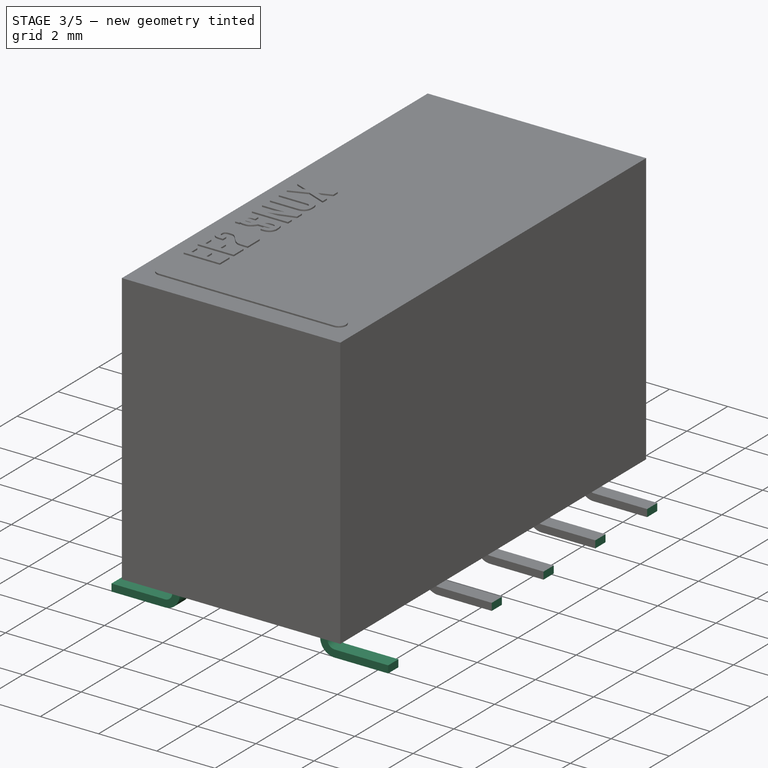
[diagram: stage 3 of 5 — iso view after this stage's code; geometry added in this stage tinted green]
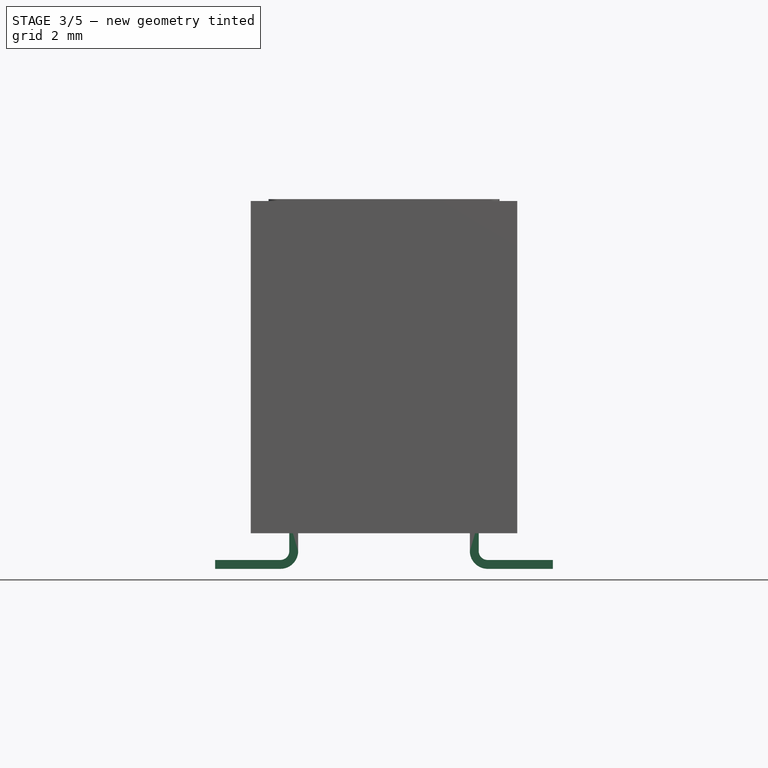
[diagram: stage 3 of 5 — front view after this stage's code; geometry added in this stage tinted green]
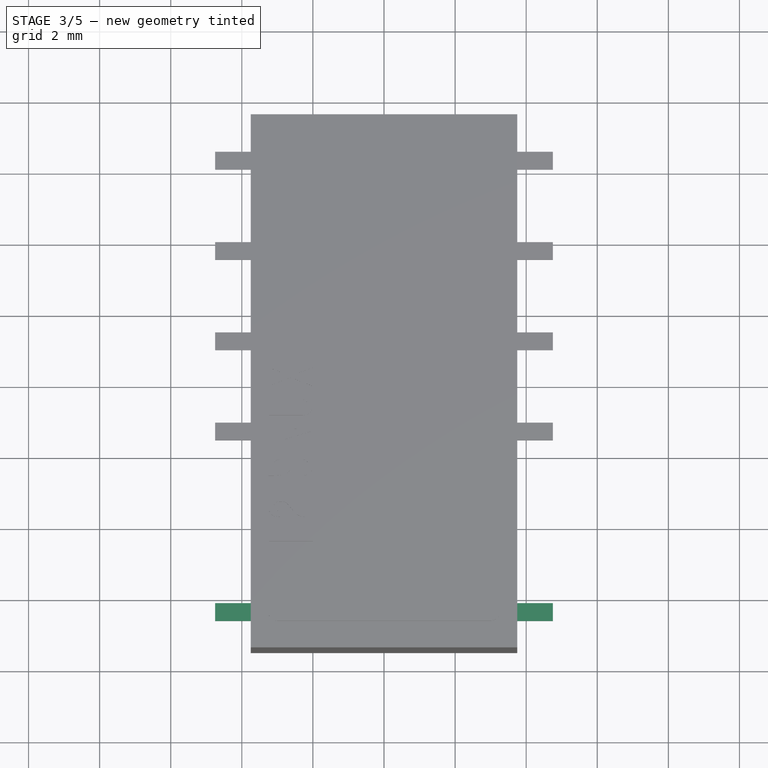
[diagram: stage 3 of 5 — top view after this stage's code; geometry added in this stage tinted green]
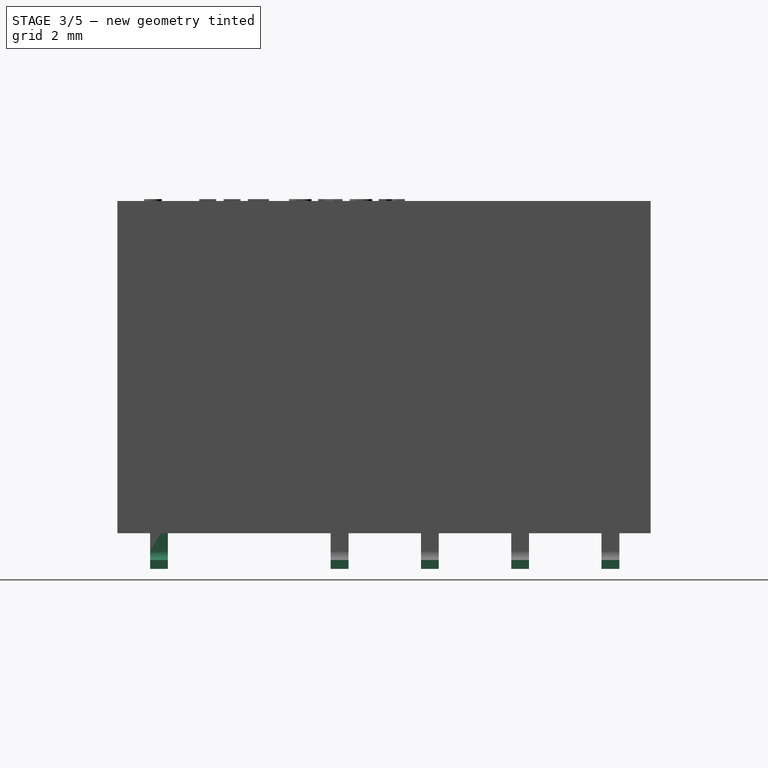
[diagram: stage 3 of 5 — right view after this stage's code; geometry added in this stage tinted green]
FEATURE [App::Part] Part003  label="EE2-NKX"
  Group = -> [Body026,Body021,Body025,Body023,Body022,Body024,Array006,Array007]
  Origin = -> Origin030
FEATURE [Sketcher::SketchObject] Sketch030
  MapMode = 5
  Placement = pos=(0,0,0) rot=(1,0,0;1.5708rad)
  Support = -> [XZ_Plane037]
  sketch-geometry (7):
    g0: LineSegment StartX=-2.665 StartY=1.35 StartZ=0 EndX=-2.665 EndY=0.25 EndZ=0
    g1: LineSegment StartX=-2.665 StartY=0.25 StartZ=0 EndX=-4.75 EndY=0.25 EndZ=0
    g2: LineSegment StartX=-4.75 StartY=0.25 StartZ=0 EndX=-4.75 EndY=0 EndZ=0
    g3: LineSegment StartX=-4.75 StartY=0 StartZ=0 EndX=-2.415 EndY=0 EndZ=0
    g4: LineSegment StartX=-2.415 StartY=0 StartZ=0 EndX=-2.415 EndY=1.35 EndZ=0
    g5: LineSegment StartX=-2.415 StartY=1.35 StartZ=0 EndX=-2.665 EndY=1.35 EndZ=0
    g6: GeomPoint X=-2.54 Y=1.35 Z=0
  constraints (19):
    c: Vertical(g0)
    c: Coincident(g0,g1)
    c: Horizontal(g1)
    c: Coincident(g1,g2)
    c: PointOnObject(g2,g-1)
    c: Vertical(g2)
    c: Coincident(g2,g3)
    c: Horizontal(g3)
    c: Coincident(g3,g4)
    c: Vertical(g4)
    c: Coincident(g4,g5)
    c: Coincident(g5,g0)
    c: Horizontal(g5)
    c: DistanceY(g2,g2) = 0.25
    c: Symmetric(g0,g4,g6)
    c: DistanceX(g6,g-1) = 2.54
    c: Equal(g5,g2)
    c: DistanceY(g4,g4) = 1.35
    c: DistanceX(g2,g-1) = 4.75
FEATURE [Sketcher::SketchObject] Sketch031
  MapMode = 5
  Support = -> [XY_Plane032]
  sketch-geometry (4):
    g0: LineSegment StartX=3.75 StartY=-7.5 StartZ=0 EndX=-3.75 EndY=-7.5 EndZ=0
    g1: LineSegment StartX=-3.75 StartY=-7.5 StartZ=0 EndX=-3.75 EndY=7.5 EndZ=0
    g2: LineSegment StartX=-3.75 StartY=7.5 StartZ=0 EndX=3.75 EndY=7.5 EndZ=0
    g3: LineSegment StartX=3.75 StartY=7.5 StartZ=0 EndX=3.75 EndY=-7.5 EndZ=0
  constraints (10):
    c: Coincident(g0,g1)
    c: Coincident(g1,g2)
    c: Coincident(g2,g3)
    c: Coincident(g3,g0)
    c: Horizontal(g0)
    c: Vertical(g1)
    c: Symmetric(g1,g2,g-2)
    c: Symmetric(g2,g0,g-1)
    c: DistanceX(g2,g2) = 7.5
    c: DistanceY(g3,g3) = 15
FEATURE [PartDesign::Pad] Pad024  label="MainPad004"
  Length = 10
  Length2 = 100
  Profile = -> Sketch031
  Type = 0
FEATURE [Sketcher::SketchObject] Sketch032
  ExternalGeometry = -> [Pad024]
  MapMode = 5
  Placement = pos=(-3.75,0,0) rot=(0.57735,-0.57735,-0.57735;2.0944rad)
  Support = -> [Pad024]
  sketch-geometry (4):
    g0: LineSegment StartX=-7.5 StartY=0 StartZ=0 EndX=7.5 EndY=0 EndZ=0
    g1: LineSegment StartX=7.5 StartY=0 StartZ=0 EndX=7.5 EndY=1 EndZ=0
    g2: LineSegment StartX=7.5 StartY=1 StartZ=0 EndX=-7.5 EndY=1 EndZ=0
    g3: LineSegment StartX=-7.5 StartY=1 StartZ=0 EndX=-7.5 EndY=0 EndZ=0
  constraints (11):
    c: Coincident(g0,g1)
    c: Coincident(g1,g2)
    c: Coincident(g2,g3)
    c: Coincident(g3,g0)
    c: Horizontal(g0)
    c: Horizontal(g2)
    c: Vertical(g1)
    c: Vertical(g3)
    c: Coincident(g0,g-3)
    c: PointOnObject(g1,g-4)
    c: DistanceY(g1,g1) = 1
FEATURE [PartDesign::Pocket] Pocket010  label="BottomPocket008"
  BaseFeature = -> Pad024
  Length = 5
  Length2 = 100
  Profile = -> Sketch032
  Type = 1
FEATURE [Sketcher::SketchObject] Sketch033
  ExternalGeometry = -> [Pocket010]
  MapMode = 5
  Placement = pos=(0,0,1) rot=(1,0,0;3.14159rad)
  Support = -> [Pocket010]
  sketch-geometry (4):
    g0: LineSegment StartX=-3.55 StartY=7.3 StartZ=0 EndX=3.55 EndY=7.3 EndZ=0
    g1: LineSegment StartX=3.55 StartY=7.3 StartZ=0 EndX=3.55 EndY=-7.3 EndZ=0
    g2: LineSegment StartX=3.55 StartY=-7.3 StartZ=0 EndX=-3.55 EndY=-7.3 EndZ=0
    g3: LineSegment StartX=-3.55 StartY=-7.3 StartZ=0 EndX=-3.55 EndY=7.3 EndZ=0
  constraints (10):
    c: Coincident(g0,g1)
    c: Coincident(g1,g2)
    c: Coincident(g2,g3)
    c: Coincident(g3,g0)
    c: Horizontal(g2)
    c: Vertical(g3)
    c: Symmetric(g0,g0,g-2)
    c: Symmetric(g0,g1,g-1)
    c: DistanceX(g0,g-3) = 0.2
    c: DistanceY(g0,g-3) = 0.2
FEATURE [PartDesign::Pocket] Pocket011  label="BottomPocket009"
  BaseFeature = -> Pocket010
  Length = 0.1
  Length2 = 100
  Profile = -> Sketch033
  Type = 0
FEATURE [Sketcher::SketchObject] Sketch034
  MapMode = 5
  Placement = pos=(0,0,1.1) rot=(1,0,0;3.14159rad)
  Support = -> [Pocket011]
  sketch-geometry (8):
    g0: LineSegment StartX=-1.62865 StartY=5.15007 StartZ=0 EndX=1.62865 EndY=5.15007 EndZ=0
    g1: LineSegment StartX=2.35483 StartY=4.42389 StartZ=0 EndX=2.35483 EndY=-4.42389 EndZ=0
    g2: LineSegment StartX=1.62865 StartY=-5.15007 StartZ=0 EndX=-1.62865 EndY=-5.15007 EndZ=0
    g3: LineSegment StartX=-2.35483 StartY=-4.42389 StartZ=0 EndX=-2.35483 EndY=4.42389 EndZ=0
    g4: ArcOfCircle CenterX=-1.62865 CenterY=4.42389 CenterZ=0 NormalX=0 NormalY=0 NormalZ=1 AngleXU=0 Radius=0.726182 StartAngle=1.5708 EndAngle=3.14159
    g5: ArcOfCircle CenterX=1.62865 CenterY=4.42389 CenterZ=0 NormalX=0 NormalY=0 NormalZ=1 AngleXU=0 Radius=0.726182 StartAngle=0 EndAngle=1.5708
    g6: ArcOfCircle CenterX=1.62865 CenterY=-4.42389 CenterZ=0 NormalX=0 NormalY=0 NormalZ=1 AngleXU=0 Radius=0.726182 StartAngle=4.71239 EndAngle=6.28319
    g7: ArcOfCircle CenterX=-1.62865 CenterY=-4.42389 CenterZ=0 NormalX=0 NormalY=0 NormalZ=1 AngleXU=0 Radius=0.726182 StartAngle=3.14159 EndAngle=4.71239
  constraints (15):
    c: Horizontal(g0)
    c: Horizontal(g2)
    c: Vertical(g1)
    c: Vertical(g3)
    c: Tangent(g0,g4) = 1.5708
    c: Tangent(g3,g4) = 1.5708
    c: Tangent(g0,g5) = 1.5708
    c: Tangent(g1,g5) = 1.5708
    c: Tangent(g1,g6) = 1.5708
    c: Tangent(g2,g6) = 1.5708
    c: Tangent(g2,g7) = 1.5708
    c: Tangent(g3,g7) = 1.5708
    c: Equal(g7,g6)
    c: Symmetric(g3,g1,g-2)
    c: Symmetric(g0,g2,g-1)
FEATURE [PartDesign::Pad] Pad026
  Length = 0.5
  Length2 = 100
  Midplane = true
  Placement = pos=(0,0,0) rot=(1,0,0;1.5708rad)
  Profile = -> Sketch030
  Type = 0
FEATURE [PartDesign::Pad] Pad027  label="BottomPad004"
  BaseFeature = -> Pocket011
  Length = 0.05
  Length2 = 100
  Profile = -> Sketch034
  Type = 0
FEATURE [Sketcher::SketchObject] Sketch035
  ExternalGeometry = -> [Pad027]
  MapMode = 5
  Placement = pos=(0,0,10) rot=(0,0,1;0rad)
  Support = -> [Pad027]
  sketch-geometry (4):
    g0: ArcOfCircle CenterX=-3 CenterY=-6.5 CenterZ=0 NormalX=0 NormalY=0 NormalZ=1 AngleXU=0 Radius=0.25 StartAngle=1.5708 EndAngle=4.71239
    g1: ArcOfCircle CenterX=3 CenterY=-6.5 CenterZ=0 NormalX=0 NormalY=0 NormalZ=1 AngleXU=0 Radius=0.25 StartAngle=4.71239 EndAngle=7.85398
    g2: LineSegment StartX=-3 StartY=-6.75 StartZ=0 EndX=3 EndY=-6.75 EndZ=0
    g3: LineSegment StartX=-3 StartY=-6.25 StartZ=0 EndX=3 EndY=-6.25 EndZ=0
  constraints (9):
    c: Tangent(g0,g3) = 1.5708
    c: Tangent(g0,g2) = -1.5708
    c: Tangent(g2,g1) = -1.5708
    c: Tangent(g3,g1) = 1.5708
    c: Horizontal(g2)
    c: Symmetric(g1,g0,g-2)
    c: DistanceY(g1,g1) = 0.5
    c: DistanceY(g-3,g0) = 1
    c: DistanceX(g-3,g0) = 0.75
FEATURE [PartDesign::Pad] Pad028  label="CoilMarkingPad004"
  BaseFeature = -> Pad027
  Length = 0.05
  Length2 = 100
  Profile = -> Sketch035
  Type = 0
FEATURE [Part::Part2DObjectPython] ShapeString004  # Draft 2D object (typed FeaturePython)
  AttachmentOffset = pos=(-1,-1,0) rot=(0,0,-1;1.5708rad)
  FontFile = <userpath>/Desktop/GitHub/freecad-projects/00-fonts/coolvetica condensed rg.ttf
  MapMode = 6
  Placement = pos=(-2,-5.25,10) rot=(0,0,1;1.5708rad)
  Size = 0.75
  String = EE2 SNU
  Support = -> [Pad028]
  Tracking = 0.13
FEATURE [PartDesign::Pad] Pad025  label="ShapeStringPad004"
  BaseFeature = -> Pad028
  Length = 0.05
  Length2 = 100
  Profile = -> ShapeString004
  Refine = true
  Type = 0
FEATURE [PartDesign::Body] Body030  label="EE2-SNU_Body"
  Group = -> [Sketch031,Pad024,Sketch032,Pocket010,Sketch033,Pocket011,Sketch034,Pad027,Sketch035,Pad028,ShapeString004,Pad025]
  Origin = -> Origin034
  Tip = -> Pad025
FEATURE [PartDesign::Fillet] Fillet009
  Base = -> Pad026 [Edge2]
  BaseFeature = -> Pad026
  Placement = pos=(0,0,0) rot=(1,0,0;1.5708rad)
  Radius = 0.25
FEATURE [PartDesign::Fillet] Fillet008
  Base = -> Fillet009 [Edge20]
  BaseFeature = -> Fillet009
  Placement = pos=(0,0,0) rot=(1,0,0;1.5708rad)
  Radius = 0.5
FEATURE [PartDesign::Body] Body031
  Group = -> [Sketch030,Pad026,Fillet009,Fillet008]
  Origin = -> Origin036
  Tip = -> Fillet008
FEATURE [PartDesign::FeatureBase] Clone018
  BaseFeature = -> Body031
FEATURE [PartDesign::Body] Body029
  BaseFeature = -> Body031
  Group = -> [Clone018]
  Origin = -> Origin037
  Placement = pos=(0,-6.33,0) rot=(0,0,1;3.14159rad)
  Tip = -> Clone018
FEATURE [PartDesign::FeatureBase] Clone017
  BaseFeature = -> Body029
  Placement = pos=(0,-6.33,0) rot=(0,0,1;3.14159rad)
FEATURE [PartDesign::Body] Body028
  BaseFeature = -> Body029
  Group = -> [Clone017]
  Origin = -> Origin033
  Placement = pos=(0,5.08,0) rot=(0,0,1;0rad)
  Tip = -> Clone017
FEATURE [Part::FeaturePython] Array008  # Draft array (typed FeaturePython)
  Angle = 360
  ArrayType = 0
  Axis = (0,0,1)
  Base = -> Body028
  Center = (0,0,0)
  Fuse = false
  IntervalAxis = (0,0,0)
  IntervalX = (1,0,0)
  IntervalY = (0,2.54,0)
  IntervalZ = (0,0,1)
  NumberPolar = 1
  NumberX = 1
  NumberY = 3
  NumberZ = 1
FEATURE [PartDesign::FeatureBase] Clone019
  BaseFeature = -> Body031
FEATURE [PartDesign::Body] Body027
  BaseFeature = -> Body031
  Group = -> [Clone019]
  Origin = -> Origin032
  Placement = pos=(0,-6.33,0) rot=(0,0,1;0rad)
  Tip = -> Clone019
FEATURE [PartDesign::FeatureBase] Clone016
  BaseFeature = -> Body027
  Placement = pos=(0,-6.33,0) rot=(0,0,1;0rad)
FEATURE [PartDesign::Body] Body032
  BaseFeature = -> Body027
  Group = -> [Clone016]
  Origin = -> Origin031
  Placement = pos=(0,5.08,0) rot=(0,0,1;0rad)
  Tip = -> Clone016
FEATURE [Part::FeaturePython] Array009  # Draft array (typed FeaturePython)
  Angle = 360
  ArrayType = 0
  Axis = (0,0,1)
  Base = -> Body032
  Center = (0,0,0)
  Fuse = false
  IntervalAxis = (0,0,0)
  IntervalX = (1,0,0)
  IntervalY = (0,2.54,0)
  IntervalZ = (0,0,1)
  NumberPolar = 1
  NumberX = 1
  NumberY = 3
  NumberZ = 1
FEATURE [Part::MultiFuse] Fusion001  label="EE2-SNU_Pins"
  Shapes = -> [Body029,Body027,Array008,Array009]
FEATURE [App::Part] Part004  label="EE2-SNU"
  Group = -> [Body030,Body031,Body029,Body027,Body028,Body032,Array008,Array009,Fusion001]
  Origin = -> Origin035
FEATURE [Sketcher::SketchObject] Sketch036
  MapMode = 5
  Placement = pos=(0,0,0) rot=(1,0,0;1.5708rad)
  Support = -> [XZ_Plane044]
  sketch-geometry (7):
    g0: LineSegment StartX=-2.665 StartY=1.35 StartZ=0 EndX=-2.665 EndY=0.25 EndZ=0
    g1: LineSegment StartX=-2.665 StartY=0.25 StartZ=0 EndX=-4.75 EndY=0.25 EndZ=0
    g2: LineSegment StartX=-4.75 StartY=0.25 StartZ=0 EndX=-4.75 EndY=0 EndZ=0
    g3: LineSegment StartX=-4.75 StartY=0 StartZ=0 EndX=-2.415 EndY=0 EndZ=0
    g4: LineSegment StartX=-2.415 StartY=0 StartZ=0 EndX=-2.415 EndY=1.35 EndZ=0
    g5: LineSegment StartX=-2.415 StartY=1.35 StartZ=0 EndX=-2.665 EndY=1.35 EndZ=0
    g6: GeomPoint X=-2.54 Y=1.35 Z=0
  constraints (19):
    c: Vertical(g0)
    c: Coincident(g0,g1)
    c: Horizontal(g1)
    c: Coincident(g1,g2)
    c: PointOnObject(g2,g-1)
    c: Vertical(g2)
    c: Coincident(g2,g3)
    c: Horizontal(g3)
    c: Coincident(g3,g4)
    c: Vertical(g4)
    c: Coincident(g4,g5)
    c: Coincident(g5,g0)
    c: Horizontal(g5)
    c: DistanceY(g2,g2) = 0.25
    c: Symmetric(g0,g4,g6)
    c: DistanceX(g6,g-1) = 2.54
    c: Equal(g5,g2)
    c: DistanceY(g4,g4) = 1.35
    c: DistanceX(g2,g-1) = 4.75
FEATURE [Sketcher::SketchObject] Sketch037
  MapMode = 5
  Support = -> [XY_Plane039]
  sketch-geometry (4):
    g0: LineSegment StartX=3.75 StartY=-7.5 StartZ=0 EndX=-3.75 EndY=-7.5 EndZ=0
    g1: LineSegment StartX=-3.75 StartY=-7.5 StartZ=0 EndX=-3.75 EndY=7.5 EndZ=0
    g2: LineSegment StartX=-3.75 StartY=7.5 StartZ=0 EndX=3.75 EndY=7.5 EndZ=0
    g3: LineSegment StartX=3.75 StartY=7.5 StartZ=0 EndX=3.75 EndY=-7.5 EndZ=0
  constraints (10):
    c: Coincident(g0,g1)
    c: Coincident(g1,g2)
    c: Coincident(g2,g3)
    c: Coincident(g3,g0)
    c: Horizontal(g0)
    c: Vertical(g1)
    c: Symmetric(g1,g2,g-2)
    c: Symmetric(g2,g0,g-1)
    c: DistanceX(g2,g2) = 7.5
    c: DistanceY(g3,g3) = 15
FEATURE [PartDesign::Pad] Pad029  label="MainPad005"
  Length = 10
  Length2 = 100
  Profile = -> Sketch037
  Type = 0
FEATURE [Sketcher::SketchObject] Sketch038
  ExternalGeometry = -> [Pad029]
  MapMode = 5
  Placement = pos=(-3.75,0,0) rot=(0.57735,-0.57735,-0.57735;2.0944rad)
  Support = -> [Pad029]
  sketch-geometry (4):
    g0: LineSegment StartX=-7.5 StartY=0 StartZ=0 EndX=7.5 EndY=0 EndZ=0
    g1: LineSegment StartX=7.5 StartY=0 StartZ=0 EndX=7.5 EndY=1 EndZ=0
    g2: LineSegment StartX=7.5 StartY=1 StartZ=0 EndX=-7.5 EndY=1 EndZ=0
    g3: LineSegment StartX=-7.5 StartY=1 StartZ=0 EndX=-7.5 EndY=0 EndZ=0
  constraints (11):
    c: Coincident(g0,g1)
    c: Coincident(g1,g2)
    c: Coincident(g2,g3)
    c: Coincident(g3,g0)
    c: Horizontal(g0)
    c: Horizontal(g2)
    c: Vertical(g1)
    c: Vertical(g3)
    c: Coincident(g0,g-3)
    c: PointOnObject(g1,g-4)
    c: DistanceY(g1,g1) = 1
FEATURE [PartDesign::Pocket] Pocket012  label="BottomPocket010"
  BaseFeature = -> Pad029
  Length = 5
  Length2 = 100
  Profile = -> Sketch038
  Type = 1
FEATURE [Sketcher::SketchObject] Sketch039
  ExternalGeometry = -> [Pocket012]
  MapMode = 5
  Placement = pos=(0,0,1) rot=(1,0,0;3.14159rad)
  Support = -> [Pocket012]
  sketch-geometry (4):
    g0: LineSegment StartX=-3.55 StartY=7.3 StartZ=0 EndX=3.55 EndY=7.3 EndZ=0
    g1: LineSegment StartX=3.55 StartY=7.3 StartZ=0 EndX=3.55 EndY=-7.3 EndZ=0
    g2: LineSegment StartX=3.55 StartY=-7.3 StartZ=0 EndX=-3.55 EndY=-7.3 EndZ=0
    g3: LineSegment StartX=-3.55 StartY=-7.3 StartZ=0 EndX=-3.55 EndY=7.3 EndZ=0
  constraints (10):
    c: Coincident(g0,g1)
    c: Coincident(g1,g2)
    c: Coincident(g2,g3)
    c: Coincident(g3,g0)
    c: Horizontal(g2)
    c: Vertical(g3)
    c: Symmetric(g0,g0,g-2)
    c: Symmetric(g0,g1,g-1)
    c: DistanceX(g0,g-3) = 0.2
    c: DistanceY(g0,g-3) = 0.2
FEATURE [PartDesign::Pocket] Pocket013  label="BottomPocket011"
  BaseFeature = -> Pocket012
  Length = 0.1
  Length2 = 100
  Profile = -> Sketch039
  Type = 0
FEATURE [PartDesign::Pad] Pad032  label="BottomPad005"
  BaseFeature = -> Pocket013
  Length = 0.05
  Length2 = 100
  Profile = -> Sketch040
  Type = 0
FEATURE [Sketcher::SketchObject] Sketch041
  ExternalGeometry = -> [Pad032]
  MapMode = 5
  Placement = pos=(0,0,10) rot=(0,0,1;0rad)
  Support = -> [Pad032]
  sketch-geometry (4):
    g0: ArcOfCircle CenterX=-3 CenterY=-6.5 CenterZ=0 NormalX=0 NormalY=0 NormalZ=1 AngleXU=0 Radius=0.25 StartAngle=1.5708 EndAngle=4.71239
    g1: ArcOfCircle CenterX=3 CenterY=-6.5 CenterZ=0 NormalX=0 NormalY=0 NormalZ=1 AngleXU=0 Radius=0.25 StartAngle=4.71239 EndAngle=7.85398
    g2: LineSegment StartX=-3 StartY=-6.75 StartZ=0 EndX=3 EndY=-6.75 EndZ=0
    g3: LineSegment StartX=-3 StartY=-6.25 StartZ=0 EndX=3 EndY=-6.25 EndZ=0
  constraints (9):
    c: Tangent(g0,g3) = 1.5708
    c: Tangent(g0,g2) = -1.5708
    c: Tangent(g2,g1) = -1.5708
    c: Tangent(g3,g1) = 1.5708
    c: Horizontal(g2)
    c: Symmetric(g1,g0,g-2)
    c: DistanceY(g1,g1) = 0.5
    c: DistanceY(g-3,g0) = 1
    c: DistanceX(g-3,g0) = 0.75
FEATURE [PartDesign::Pad] Pad033  label="CoilMarkingPad005"
  BaseFeature = -> Pad032
  Length = 0.05
  Length2 = 100
  Profile = -> Sketch041
  Type = 0
FEATURE [Part::Part2DObjectPython] ShapeString005  # Draft 2D object (typed FeaturePython)
  AttachmentOffset = pos=(-1,-1,0) rot=(0,0,-1;1.5708rad)
  FontFile = <userpath>/Desktop/GitHub/freecad-projects/00-fonts/coolvetica condensed rg.ttf
  MapMode = 6
  Placement = pos=(-2,-5.25,10) rot=(0,0,1;1.5708rad)
  Size = 0.75
  String = EE2 TNU
  Support = -> [Pad033]
  Tracking = 0.125
FEATURE [PartDesign::Pad] Pad030  label="ShapeStringPad005"
  BaseFeature = -> Pad033
  Length = 0.05
  Length2 = 100
  Profile = -> ShapeString005
  Refine = true
  Type = 0
FEATURE [PartDesign::Body] Body036  label="EE2-TNU_Body"
  Group = -> [Sketch037,Pad029,Sketch038,Pocket012,Sketch039,Pocket013,Sketch040,Pad032,Sketch041,Pad033,ShapeString005,Pad030]
  Origin = -> Origin041
  Tip = -> Pad030
FEATURE [PartDesign::Fillet] Fillet011
  Base = -> Pad031 [Edge2]
  BaseFeature = -> Pad031
  Placement = pos=(0,0,0) rot=(1,0,0;1.5708rad)
  Radius = 0.25
FEATURE [PartDesign::Fillet] Fillet010
  Base = -> Fillet011 [Edge20]
  BaseFeature = -> Fillet011
  Placement = pos=(0,0,0) rot=(1,0,0;1.5708rad)
  Radius = 0.5
FEATURE [PartDesign::Body] Body037
  Group = -> [Sketch036,Pad031,Fillet011,Fillet010]
  Origin = -> Origin043
  Tip = -> Fillet010
FEATURE [PartDesign::FeatureBase] Clone022
  BaseFeature = -> Body037
FEATURE [PartDesign::Body] Body035
  BaseFeature = -> Body037
  Group = -> [Clone022]
  Origin = -> Origin044
  Placement = pos=(0,-6.33,0) rot=(0,0,1;3.14159rad)
  Tip = -> Clone022
FEATURE [PartDesign::FeatureBase] Clone021
  BaseFeature = -> Body035
  Placement = pos=(0,-6.33,0) rot=(0,0,1;3.14159rad)
FEATURE [PartDesign::Body] Body034
  BaseFeature = -> Body035
  Group = -> [Clone021]
  Origin = -> Origin040
  Placement = pos=(0,5.08,0) rot=(0,0,1;0rad)
  Tip = -> Clone021
FEATURE [Part::FeaturePython] Array010  # Draft array (typed FeaturePython)
  Angle = 360
  ArrayType = 0
  Axis = (0,0,1)
  Base = -> Body034
  Center = (0,0,0)
  Fuse = false
  IntervalAxis = (0,0,0)
  IntervalX = (1,0,0)
  IntervalY = (0,2.54,0)
  IntervalZ = (0,0,1)
  NumberPolar = 1
  NumberX = 1
  NumberY = 4
  NumberZ = 1
FEATURE [PartDesign::FeatureBase] Clone023
  BaseFeature = -> Body037
FEATURE [PartDesign::Body] Body033
  BaseFeature = -> Body037
  Group = -> [Clone023]
  Origin = -> Origin039
  Placement = pos=(0,-6.33,0) rot=(0,0,1;0rad)
  Tip = -> Clone023
FEATURE [PartDesign::FeatureBase] Clone020
  BaseFeature = -> Body033
  Placement = pos=(0,-6.33,0) rot=(0,0,1;0rad)
FEATURE [PartDesign::Body] Body038
  BaseFeature = -> Body033
  Group = -> [Clone020]
  Origin = -> Origin038
  Placement = pos=(0,5.08,0) rot=(0,0,1;0rad)
  Tip = -> Clone020
FEATURE [Part::FeaturePython] Array011  # Draft array (typed FeaturePython)
  Angle = 360
  ArrayType = 0
  Axis = (0,0,1)
  Base = -> Body038
  Center = (0,0,0)
  Fuse = false
  IntervalAxis = (0,0,0)
  IntervalX = (1,0,0)
  IntervalY = (0,2.54,0)
  IntervalZ = (0,0,1)
  NumberPolar = 1
  NumberX = 1
  NumberY = 4
  NumberZ = 1
FEATURE [Part::MultiFuse] Fusion002  label="EE2-TNU_Pins"
  Shapes = -> [Body035,Body033,Array010,Array011]
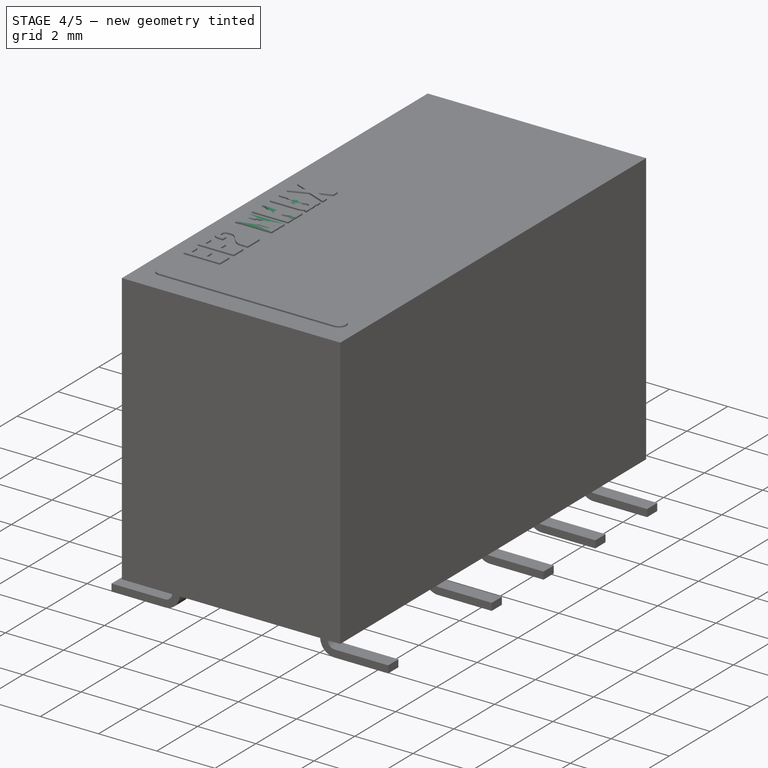
[diagram: stage 4 of 5 — iso view after this stage's code; geometry added in this stage tinted green]
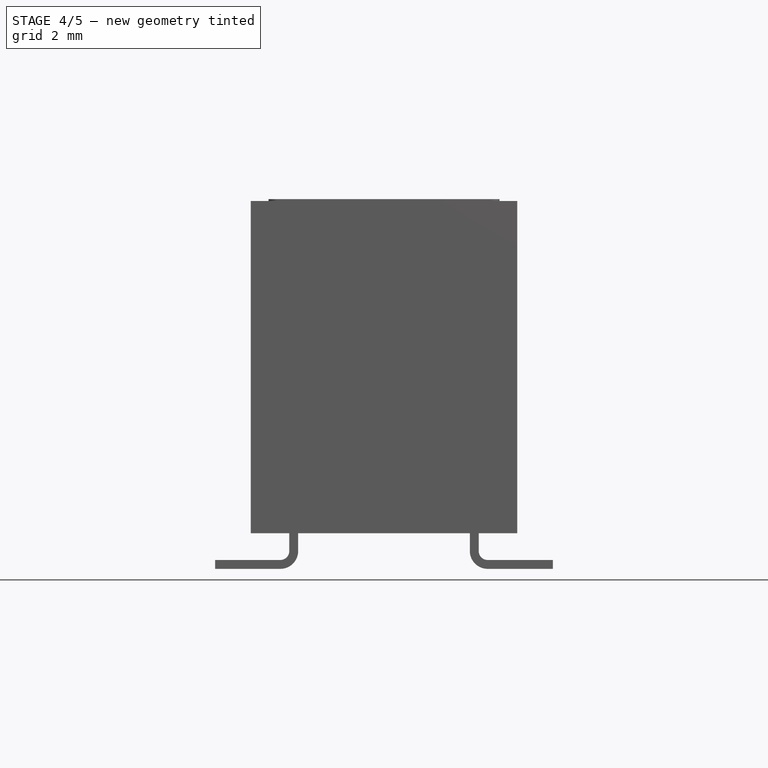
[diagram: stage 4 of 5 — front view after this stage's code; geometry added in this stage tinted green]
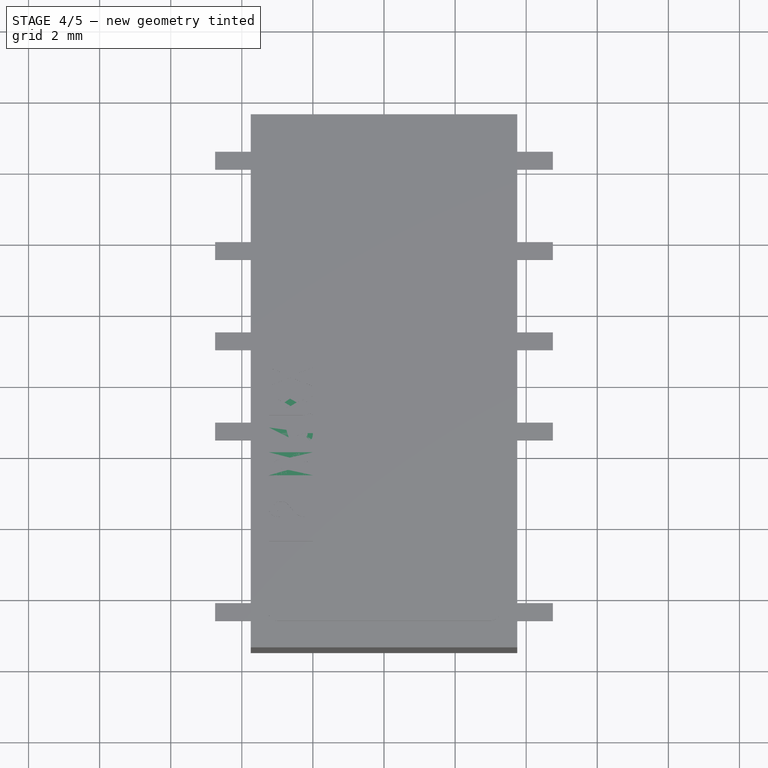
[diagram: stage 4 of 5 — top view after this stage's code; geometry added in this stage tinted green]
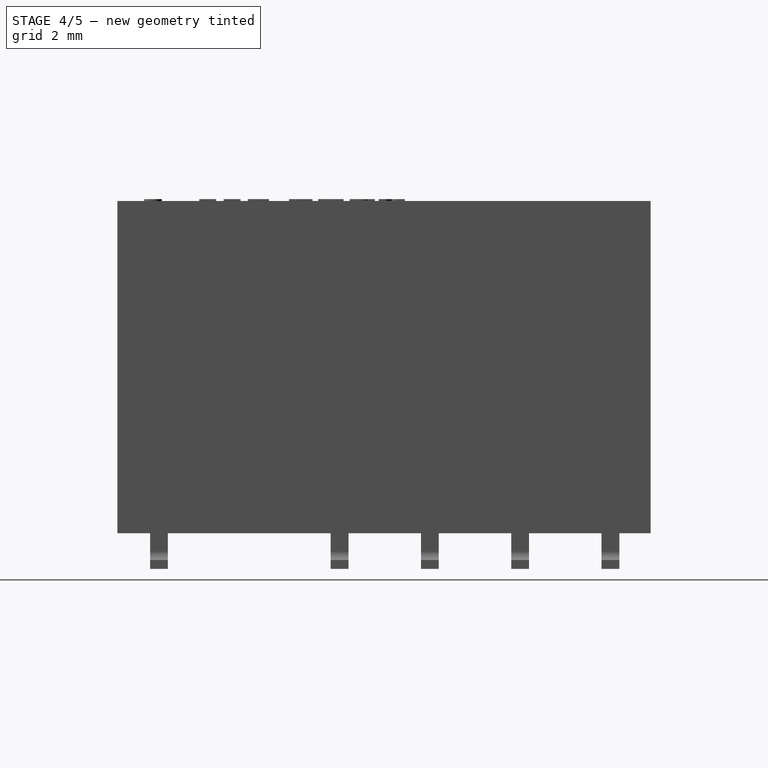
[diagram: stage 4 of 5 — right view after this stage's code; geometry added in this stage tinted green]
FEATURE [App::Part] Part001  label="EE2-NUH"
  Group = -> [Body008,Body010,Body011,Body012,Body013,Body014,Array002,Array003]
  Origin = -> Origin011
FEATURE [Sketcher::SketchObject] Sketch018
  MapMode = 5
  Placement = pos=(0,0,0) rot=(1,0,0;1.5708rad)
  Support = -> [XZ_Plane020]
  sketch-geometry (7):
    g0: LineSegment StartX=-2.665 StartY=1.35 StartZ=0 EndX=-2.665 EndY=0.25 EndZ=0
    g1: LineSegment StartX=-2.665 StartY=0.25 StartZ=0 EndX=-4.5 EndY=0.25 EndZ=0
    g2: LineSegment StartX=-4.5 StartY=0.25 StartZ=0 EndX=-4.5 EndY=0 EndZ=0
    g3: LineSegment StartX=-4.5 StartY=0 StartZ=0 EndX=-2.415 EndY=0 EndZ=0
    g4: LineSegment StartX=-2.415 StartY=0 StartZ=0 EndX=-2.415 EndY=1.35 EndZ=0
    g5: LineSegment StartX=-2.415 StartY=1.35 StartZ=0 EndX=-2.665 EndY=1.35 EndZ=0
    g6: GeomPoint X=-2.54 Y=1.35 Z=0
  constraints (19):
    c: Vertical(g0)
    c: Coincident(g0,g1)
    c: Horizontal(g1)
    c: Coincident(g1,g2)
    c: PointOnObject(g2,g-1)
    c: Vertical(g2)
    c: Coincident(g2,g3)
    c: Horizontal(g3)
    c: Coincident(g3,g4)
    c: Vertical(g4)
    c: Coincident(g4,g5)
    c: Coincident(g5,g0)
    c: Horizontal(g5)
    c: DistanceY(g2,g2) = 0.25
    c: Symmetric(g0,g4,g6)
    c: DistanceX(g6,g-1) = 2.54
    c: Equal(g5,g2)
    c: DistanceY(g4,g4) = 1.35
    c: DistanceX(g2,g-1) = 4.5
FEATURE [PartDesign::Pad] Pad017
  Length = 0.5
  Length2 = 100
  Midplane = true
  Placement = pos=(0,0,0) rot=(1,0,0;1.5708rad)
  Profile = -> Sketch018
  Type = 0
FEATURE [PartDesign::Fillet] Fillet004
  Base = -> Pad017 [Edge2]
  BaseFeature = -> Pad017
  Placement = pos=(0,0,0) rot=(1,0,0;1.5708rad)
  Radius = 0.25
FEATURE [PartDesign::Fillet] Fillet005
  Base = -> Fillet004 [Edge20]
  BaseFeature = -> Fillet004
  Placement = pos=(0,0,0) rot=(1,0,0;1.5708rad)
  Radius = 0.5
FEATURE [PartDesign::Body] Body020
  Group = -> [Sketch018,Pad017,Fillet004,Fillet005]
  Origin = -> Origin019
  Tip = -> Fillet005
FEATURE [PartDesign::FeatureBase] Clone008
  BaseFeature = -> Body020
FEATURE [PartDesign::FeatureBase] Clone009
  BaseFeature = -> Body020
FEATURE [PartDesign::Body] Body017
  BaseFeature = -> Body020
  Group = -> [Clone009]
  Origin = -> Origin022
  Placement = pos=(0,-6.33,0) rot=(0,0,1;3.14159rad)
  Tip = -> Clone009
FEATURE [PartDesign::Body] Body018
  Group = -> [Clone008]
  Origin = -> Origin023
  Placement = pos=(0,-6.33,0) rot=(0,0,1;0rad)
  Tip = -> Clone008
FEATURE [PartDesign::FeatureBase] Clone010
  BaseFeature = -> Body018
  Placement = pos=(0,-6.33,0) rot=(0,0,1;0rad)
FEATURE [PartDesign::Body] Body015
  BaseFeature = -> Body018
  Group = -> [Clone010]
  Origin = -> Origin021
  Placement = pos=(0,5.08,0) rot=(0,0,1;0rad)
  Tip = -> Clone010
FEATURE [Part::FeaturePython] Array004  # Draft array (typed FeaturePython)
  Angle = 360
  ArrayType = 0
  Axis = (0,0,1)
  Base = -> Body015
  Center = (0,0,0)
  Fuse = false
  IntervalAxis = (0,0,0)
  IntervalX = (1,0,0)
  IntervalY = (0,2.54,0)
  IntervalZ = (0,0,1)
  NumberPolar = 1
  NumberX = 1
  NumberY = 3
  NumberZ = 1
FEATURE [PartDesign::FeatureBase] Clone011
  BaseFeature = -> Body017
  Placement = pos=(0,-6.33,0) rot=(0,0,1;3.14159rad)
FEATURE [PartDesign::Body] Body016
  BaseFeature = -> Body017
  Group = -> [Clone011]
  Origin = -> Origin020
  Placement = pos=(0,5.08,0) rot=(0,0,1;0rad)
  Tip = -> Clone011
FEATURE [Part::FeaturePython] Array005  # Draft array (typed FeaturePython)
  Angle = 360
  ArrayType = 0
  Axis = (0,0,1)
  Base = -> Body016
  Center = (0,0,0)
  Fuse = false
  IntervalAxis = (0,0,0)
  IntervalX = (1,0,0)
  IntervalY = (0,2.54,0)
  IntervalZ = (0,0,1)
  NumberPolar = 1
  NumberX = 1
  NumberY = 3
  NumberZ = 1
FEATURE [Sketcher::SketchObject] Sketch021
  MapMode = 5
  Support = -> [XY_Plane022]
  sketch-geometry (4):
    g0: LineSegment StartX=3.75 StartY=-7.5 StartZ=0 EndX=-3.75 EndY=-7.5 EndZ=0
    g1: LineSegment StartX=-3.75 StartY=-7.5 StartZ=0 EndX=-3.75 EndY=7.5 EndZ=0
    g2: LineSegment StartX=-3.75 StartY=7.5 StartZ=0 EndX=3.75 EndY=7.5 EndZ=0
    g3: LineSegment StartX=3.75 StartY=7.5 StartZ=0 EndX=3.75 EndY=-7.5 EndZ=0
  constraints (10):
    c: Coincident(g0,g1)
    c: Coincident(g1,g2)
    c: Coincident(g2,g3)
    c: Coincident(g3,g0)
    c: Horizontal(g0)
    c: Vertical(g1)
    c: Symmetric(g1,g2,g-2)
    c: Symmetric(g2,g0,g-1)
    c: DistanceX(g2,g2) = 7.5
    c: DistanceY(g3,g3) = 15
FEATURE [PartDesign::Pad] Pad018  label="MainPad002"
  Length = 10.35
  Length2 = 100
  Profile = -> Sketch021
  Type = 0
FEATURE [Sketcher::SketchObject] Sketch020
  ExternalGeometry = -> [Pad018]
  MapMode = 5
  Placement = pos=(-3.75,0,0) rot=(0.57735,-0.57735,-0.57735;2.0944rad)
  Support = -> [Pad018]
  sketch-geometry (4):
    g0: LineSegment StartX=-7.5 StartY=0 StartZ=0 EndX=7.5 EndY=0 EndZ=0
    g1: LineSegment StartX=7.5 StartY=0 StartZ=0 EndX=7.5 EndY=1.35 EndZ=0
    g2: LineSegment StartX=7.5 StartY=1.35 StartZ=0 EndX=-7.5 EndY=1.35 EndZ=0
    g3: LineSegment StartX=-7.5 StartY=1.35 StartZ=0 EndX=-7.5 EndY=0 EndZ=0
  constraints (11):
    c: Coincident(g0,g1)
    c: Coincident(g1,g2)
    c: Coincident(g2,g3)
    c: Coincident(g3,g0)
    c: Horizontal(g0)
    c: Horizontal(g2)
    c: Vertical(g1)
    c: Vertical(g3)
    c: Coincident(g0,g-3)
    c: PointOnObject(g1,g-4)
    c: DistanceY(g1,g1) = 1.35
FEATURE [PartDesign::Pocket] Pocket006  label="BottomPocket004"
  BaseFeature = -> Pad018
  Length = 5
  Length2 = 100
  Profile = -> Sketch020
  Type = 1
FEATURE [Sketcher::SketchObject] Sketch019
  ExternalGeometry = -> [Pocket006]
  MapMode = 5
  Placement = pos=(0,0,1.35) rot=(1,0,0;3.14159rad)
  Support = -> [Pocket006]
  sketch-geometry (4):
    g0: LineSegment StartX=-3.55 StartY=7.3 StartZ=0 EndX=3.55 EndY=7.3 EndZ=0
    g1: LineSegment StartX=3.55 StartY=7.3 StartZ=0 EndX=3.55 EndY=-7.3 EndZ=0
    g2: LineSegment StartX=3.55 StartY=-7.3 StartZ=0 EndX=-3.55 EndY=-7.3 EndZ=0
    g3: LineSegment StartX=-3.55 StartY=-7.3 StartZ=0 EndX=-3.55 EndY=7.3 EndZ=0
  constraints (10):
    c: Coincident(g0,g1)
    c: Coincident(g1,g2)
    c: Coincident(g2,g3)
    c: Coincident(g3,g0)
    c: Horizontal(g2)
    c: Vertical(g3)
    c: Symmetric(g0,g0,g-2)
    c: Symmetric(g0,g1,g-1)
    c: DistanceX(g0,g-3) = 0.2
    c: DistanceY(g0,g-3) = 0.2
FEATURE [PartDesign::Pocket] Pocket007  label="BottomPocket005"
  BaseFeature = -> Pocket006
  Length = 0.1
  Length2 = 100
  Profile = -> Sketch019
  Type = 0
FEATURE [Sketcher::SketchObject] Sketch023
  MapMode = 5
  Placement = pos=(0,0,1.45) rot=(1,0,0;3.14159rad)
  Support = -> [Pocket007]
  sketch-geometry (8):
    g0: LineSegment StartX=-1.62865 StartY=5.15007 StartZ=0 EndX=1.62865 EndY=5.15007 EndZ=0
    g1: LineSegment StartX=2.35483 StartY=4.42389 StartZ=0 EndX=2.35483 EndY=-4.42389 EndZ=0
    g2: LineSegment StartX=1.62865 StartY=-5.15007 StartZ=0 EndX=-1.62865 EndY=-5.15007 EndZ=0
    g3: LineSegment StartX=-2.35483 StartY=-4.42389 StartZ=0 EndX=-2.35483 EndY=4.42389 EndZ=0
    g4: ArcOfCircle CenterX=-1.62865 CenterY=4.42389 CenterZ=0 NormalX=0 NormalY=0 NormalZ=1 AngleXU=0 Radius=0.726182 StartAngle=1.5708 EndAngle=3.14159
    g5: ArcOfCircle CenterX=1.62865 CenterY=4.42389 CenterZ=0 NormalX=0 NormalY=0 NormalZ=1 AngleXU=0 Radius=0.726182 StartAngle=0 EndAngle=1.5708
    g6: ArcOfCircle CenterX=1.62865 CenterY=-4.42389 CenterZ=0 NormalX=0 NormalY=0 NormalZ=1 AngleXU=0 Radius=0.726182 StartAngle=4.71239 EndAngle=6.28319
    g7: ArcOfCircle CenterX=-1.62865 CenterY=-4.42389 CenterZ=0 NormalX=0 NormalY=0 NormalZ=1 AngleXU=0 Radius=0.726182 StartAngle=3.14159 EndAngle=4.71239
  constraints (15):
    c: Horizontal(g0)
    c: Horizontal(g2)
    c: Vertical(g1)
    c: Vertical(g3)
    c: Tangent(g0,g4) = 1.5708
    c: Tangent(g3,g4) = 1.5708
    c: Tangent(g0,g5) = 1.5708
    c: Tangent(g1,g5) = 1.5708
    c: Tangent(g1,g6) = 1.5708
    c: Tangent(g2,g6) = 1.5708
    c: Tangent(g2,g7) = 1.5708
    c: Tangent(g3,g7) = 1.5708
    c: Equal(g7,g6)
    c: Symmetric(g3,g1,g-2)
    c: Symmetric(g0,g2,g-1)
FEATURE [PartDesign::Pad] Pad015  label="BottomPad002"
  BaseFeature = -> Pocket007
  Length = 0.05
  Length2 = 100
  Profile = -> Sketch023
  Type = 0
FEATURE [Sketcher::SketchObject] Sketch022
  ExternalGeometry = -> [Pad015]
  MapMode = 5
  Placement = pos=(0,0,10.35) rot=(0,0,1;0rad)
  Support = -> [Pad015]
  sketch-geometry (4):
    g0: ArcOfCircle CenterX=-3 CenterY=-6.5 CenterZ=0 NormalX=0 NormalY=0 NormalZ=1 AngleXU=0 Radius=0.25 StartAngle=1.5708 EndAngle=4.71239
    g1: ArcOfCircle CenterX=3 CenterY=-6.5 CenterZ=0 NormalX=0 NormalY=0 NormalZ=1 AngleXU=0 Radius=0.25 StartAngle=4.71239 EndAngle=7.85398
    g2: LineSegment StartX=-3 StartY=-6.75 StartZ=0 EndX=3 EndY=-6.75 EndZ=0
    g3: LineSegment StartX=-3 StartY=-6.25 StartZ=0 EndX=3 EndY=-6.25 EndZ=0
  constraints (9):
    c: Tangent(g0,g3) = 1.5708
    c: Tangent(g0,g2) = -1.5708
    c: Tangent(g2,g1) = -1.5708
    c: Tangent(g3,g1) = 1.5708
    c: Horizontal(g2)
    c: Symmetric(g1,g0,g-2)
    c: DistanceY(g1,g1) = 0.5
    c: DistanceY(g-3,g0) = 1
    c: DistanceX(g-3,g0) = 0.75
FEATURE [PartDesign::Pad] Pad016  label="CoilMarkingPad002"
  BaseFeature = -> Pad015
  Length = 0.05
  Length2 = 100
  Profile = -> Sketch022
  Type = 0
FEATURE [Part::Part2DObjectPython] ShapeString002  # Draft 2D object (typed FeaturePython)
  AttachmentOffset = pos=(-1,-1,0) rot=(0,0,-1;1.5708rad)
  FontFile = <userpath>/Desktop/GitHub/freecad-projects/00-fonts/coolvetica condensed rg.ttf
  MapMode = 6
  Placement = pos=(-2,-5.25,10.35) rot=(0,0,1;1.5708rad)
  Size = 0.75
  String = EE2 NUX
  Support = -> [Pad016]
  Tracking = 0.125
FEATURE [PartDesign::Pad] Pad014  label="ShapeStringPad002"
  BaseFeature = -> Pad016
  Length = 0.05
  Length2 = 100
  Profile = -> ShapeString002
  Refine = true
  Type = 0
FEATURE [PartDesign::Body] Body019  label="EE2-NUX_Body"
  Group = -> [Sketch021,Pad018,Sketch020,Pocket006,Sketch019,Pocket007,Sketch023,Pad015,Sketch022,Pad016,ShapeString002,Pad014]
  Origin = -> Origin018
  Tip = -> Pad014
FEATURE [App::Part] Part002  label="EE2-NUX"
  Group = -> [Body019,Body020,Body018,Body017,Body015,Body016,Array004,Array005]
  Origin = -> Origin017
FEATURE [Sketcher::SketchObject] Sketch025
  MapMode = 5
  Support = -> [XY_Plane030]
  sketch-geometry (4):
    g0: LineSegment StartX=3.75 StartY=-7.5 StartZ=0 EndX=-3.75 EndY=-7.5 EndZ=0
    g1: LineSegment StartX=-3.75 StartY=-7.5 StartZ=0 EndX=-3.75 EndY=7.5 EndZ=0
    g2: LineSegment StartX=-3.75 StartY=7.5 StartZ=0 EndX=3.75 EndY=7.5 EndZ=0
    g3: LineSegment StartX=3.75 StartY=7.5 StartZ=0 EndX=3.75 EndY=-7.5 EndZ=0
  constraints (10):
    c: Coincident(g0,g1)
    c: Coincident(g1,g2)
    c: Coincident(g2,g3)
    c: Coincident(g3,g0)
    c: Horizontal(g0)
    c: Vertical(g1)
    c: Symmetric(g1,g2,g-2)
    c: Symmetric(g2,g0,g-1)
    c: DistanceX(g2,g2) = 7.5
    c: DistanceY(g3,g3) = 15
FEATURE [PartDesign::Pad] Pad019  label="MainPad003"
  Length = 10.35
  Length2 = 100
  Profile = -> Sketch025
  Type = 0
FEATURE [Sketcher::SketchObject] Sketch027
  MapMode = 5
  Placement = pos=(0,0,0) rot=(1,0,0;1.5708rad)
  Support = -> [XZ_Plane028]
  sketch-geometry (7):
    g0: LineSegment StartX=-2.665 StartY=1.35 StartZ=0 EndX=-2.665 EndY=0.25 EndZ=0
    g1: LineSegment StartX=-2.665 StartY=0.25 StartZ=0 EndX=-4.5 EndY=0.25 EndZ=0
    g2: LineSegment StartX=-4.5 StartY=0.25 StartZ=0 EndX=-4.5 EndY=0 EndZ=0
    g3: LineSegment StartX=-4.5 StartY=0 StartZ=0 EndX=-2.415 EndY=0 EndZ=0
    g4: LineSegment StartX=-2.415 StartY=0 StartZ=0 EndX=-2.415 EndY=1.35 EndZ=0
    g5: LineSegment StartX=-2.415 StartY=1.35 StartZ=0 EndX=-2.665 EndY=1.35 EndZ=0
    g6: GeomPoint X=-2.54 Y=1.35 Z=0
  constraints (19):
    c: Vertical(g0)
    c: Coincident(g0,g1)
    c: Horizontal(g1)
    c: Coincident(g1,g2)
    c: PointOnObject(g2,g-1)
    c: Vertical(g2)
    c: Coincident(g2,g3)
    c: Horizontal(g3)
    c: Coincident(g3,g4)
    c: Vertical(g4)
    c: Coincident(g4,g5)
    c: Coincident(g5,g0)
    c: Horizontal(g5)
    c: DistanceY(g2,g2) = 0.25
    c: Symmetric(g0,g4,g6)
    c: DistanceX(g6,g-1) = 2.54
    c: Equal(g5,g2)
    c: DistanceY(g4,g4) = 1.35
    c: DistanceX(g2,g-1) = 4.5
FEATURE [PartDesign::Pad] Pad021
  Length = 0.5
  Length2 = 100
  Midplane = true
  Placement = pos=(0,0,0) rot=(1,0,0;1.5708rad)
  Profile = -> Sketch027
  Type = 0
FEATURE [Sketcher::SketchObject] Sketch029
  ExternalGeometry = -> [Pad019]
  MapMode = 5
  Placement = pos=(-3.75,0,0) rot=(0.57735,-0.57735,-0.57735;2.0944rad)
  Support = -> [Pad019]
  sketch-geometry (4):
    g0: LineSegment StartX=-7.5 StartY=0 StartZ=0 EndX=7.5 EndY=0 EndZ=0
    g1: LineSegment StartX=7.5 StartY=0 StartZ=0 EndX=7.5 EndY=1.35 EndZ=0
    g2: LineSegment StartX=7.5 StartY=1.35 StartZ=0 EndX=-7.5 EndY=1.35 EndZ=0
    g3: LineSegment StartX=-7.5 StartY=1.35 StartZ=0 EndX=-7.5 EndY=0 EndZ=0
  constraints (11):
    c: Coincident(g0,g1)
    c: Coincident(g1,g2)
    c: Coincident(g2,g3)
    c: Coincident(g3,g0)
    c: Horizontal(g0)
    c: Horizontal(g2)
    c: Vertical(g1)
    c: Vertical(g3)
    c: Coincident(g0,g-3)
    c: PointOnObject(g1,g-4)
    c: DistanceY(g1,g1) = 1.35
FEATURE [PartDesign::Pocket] Pocket008  label="BottomPocket006"
  BaseFeature = -> Pad019
  Length = 5
  Length2 = 100
  Profile = -> Sketch029
  Type = 1
FEATURE [Sketcher::SketchObject] Sketch026
  ExternalGeometry = -> [Pocket008]
  MapMode = 5
  Placement = pos=(0,0,1.35) rot=(1,0,0;3.14159rad)
  Support = -> [Pocket008]
  sketch-geometry (4):
    g0: LineSegment StartX=-3.55 StartY=7.3 StartZ=0 EndX=3.55 EndY=7.3 EndZ=0
    g1: LineSegment StartX=3.55 StartY=7.3 StartZ=0 EndX=3.55 EndY=-7.3 EndZ=0
    g2: LineSegment StartX=3.55 StartY=-7.3 StartZ=0 EndX=-3.55 EndY=-7.3 EndZ=0
    g3: LineSegment StartX=-3.55 StartY=-7.3 StartZ=0 EndX=-3.55 EndY=7.3 EndZ=0
  constraints (10):
    c: Coincident(g0,g1)
    c: Coincident(g1,g2)
    c: Coincident(g2,g3)
    c: Coincident(g3,g0)
    c: Horizontal(g2)
    c: Vertical(g3)
    c: Symmetric(g0,g0,g-2)
    c: Symmetric(g0,g1,g-1)
    c: DistanceX(g0,g-3) = 0.2
    c: DistanceY(g0,g-3) = 0.2
FEATURE [PartDesign::Pocket] Pocket009  label="BottomPocket007"
  BaseFeature = -> Pocket008
  Length = 0.1
  Length2 = 100
  Profile = -> Sketch026
  Type = 0
FEATURE [Sketcher::SketchObject] Sketch024
  MapMode = 5
  Placement = pos=(0,0,1.45) rot=(1,0,0;3.14159rad)
  Support = -> [Pocket009]
  sketch-geometry (8):
    g0: LineSegment StartX=-1.62865 StartY=5.15007 StartZ=0 EndX=1.62865 EndY=5.15007 EndZ=0
    g1: LineSegment StartX=2.35483 StartY=4.42389 StartZ=0 EndX=2.35483 EndY=-4.42389 EndZ=0
    g2: LineSegment StartX=1.62865 StartY=-5.15007 StartZ=0 EndX=-1.62865 EndY=-5.15007 EndZ=0
    g3: LineSegment StartX=-2.35483 StartY=-4.42389 StartZ=0 EndX=-2.35483 EndY=4.42389 EndZ=0
    g4: ArcOfCircle CenterX=-1.62865 CenterY=4.42389 CenterZ=0 NormalX=0 NormalY=0 NormalZ=1 AngleXU=0 Radius=0.726182 StartAngle=1.5708 EndAngle=3.14159
    g5: ArcOfCircle CenterX=1.62865 CenterY=4.42389 CenterZ=0 NormalX=0 NormalY=0 NormalZ=1 AngleXU=0 Radius=0.726182 StartAngle=0 EndAngle=1.5708
    g6: ArcOfCircle CenterX=1.62865 CenterY=-4.42389 CenterZ=0 NormalX=0 NormalY=0 NormalZ=1 AngleXU=0 Radius=0.726182 StartAngle=4.71239 EndAngle=6.28319
    g7: ArcOfCircle CenterX=-1.62865 CenterY=-4.42389 CenterZ=0 NormalX=0 NormalY=0 NormalZ=1 AngleXU=0 Radius=0.726182 StartAngle=3.14159 EndAngle=4.71239
  constraints (15):
    c: Horizontal(g0)
    c: Horizontal(g2)
    c: Vertical(g1)
    c: Vertical(g3)
    c: Tangent(g0,g4) = 1.5708
    c: Tangent(g3,g4) = 1.5708
    c: Tangent(g0,g5) = 1.5708
    c: Tangent(g1,g5) = 1.5708
    c: Tangent(g1,g6) = 1.5708
    c: Tangent(g2,g6) = 1.5708
    c: Tangent(g2,g7) = 1.5708
    c: Tangent(g3,g7) = 1.5708
    c: Equal(g7,g6)
    c: Symmetric(g3,g1,g-2)
    c: Symmetric(g0,g2,g-1)
FEATURE [PartDesign::Pad] Pad022  label="BottomPad003"
  BaseFeature = -> Pocket009
  Length = 0.05
  Length2 = 100
  Profile = -> Sketch024
  Type = 0
FEATURE [Sketcher::SketchObject] Sketch028
  ExternalGeometry = -> [Pad022]
  MapMode = 5
  Placement = pos=(0,0,10.35) rot=(0,0,1;0rad)
  Support = -> [Pad022]
  sketch-geometry (4):
    g0: ArcOfCircle CenterX=-3 CenterY=-6.5 CenterZ=0 NormalX=0 NormalY=0 NormalZ=1 AngleXU=0 Radius=0.25 StartAngle=1.5708 EndAngle=4.71239
    g1: ArcOfCircle CenterX=3 CenterY=-6.5 CenterZ=0 NormalX=0 NormalY=0 NormalZ=1 AngleXU=0 Radius=0.25 StartAngle=4.71239 EndAngle=7.85398
    g2: LineSegment StartX=-3 StartY=-6.75 StartZ=0 EndX=3 EndY=-6.75 EndZ=0
    g3: LineSegment StartX=-3 StartY=-6.25 StartZ=0 EndX=3 EndY=-6.25 EndZ=0
  constraints (9):
    c: Tangent(g0,g3) = 1.5708
    c: Tangent(g0,g2) = -1.5708
    c: Tangent(g2,g1) = -1.5708
    c: Tangent(g3,g1) = 1.5708
    c: Horizontal(g2)
    c: Symmetric(g1,g0,g-2)
    c: DistanceY(g1,g1) = 0.5
    c: DistanceY(g-3,g0) = 1
    c: DistanceX(g-3,g0) = 0.75
FEATURE [PartDesign::Pad] Pad020  label="CoilMarkingPad003"
  BaseFeature = -> Pad022
  Length = 0.05
  Length2 = 100
  Profile = -> Sketch028
  Type = 0
FEATURE [Part::Part2DObjectPython] ShapeString003  # Draft 2D object (typed FeaturePython)
  AttachmentOffset = pos=(-1,-1,0) rot=(0,0,-1;1.5708rad)
  FontFile = <userpath>/Desktop/GitHub/freecad-projects/00-fonts/coolvetica condensed rg.ttf
  MapMode = 6
  Placement = pos=(-2,-5.25,10.35) rot=(0,0,1;1.5708rad)
  Size = 0.75
  String = EE2 NKX
  Support = -> [Pad020]
  Tracking = 0.125
FEATURE [PartDesign::Pad] Pad023  label="ShapeStringPad003"
  BaseFeature = -> Pad020
  Length = 0.05
  Length2 = 100
  Profile = -> ShapeString003
  Refine = true
  Type = 0
FEATURE [PartDesign::Body] Body026  label="EE2-NKX_Body"
  Group = -> [Sketch025,Pad019,Sketch029,Pocket008,Sketch026,Pocket009,Sketch024,Pad022,Sketch028,Pad020,ShapeString003,Pad023]
  Origin = -> Origin027
  Tip = -> Pad023
FEATURE [PartDesign::Fillet] Fillet007
  Base = -> Pad021 [Edge2]
  BaseFeature = -> Pad021
  Placement = pos=(0,0,0) rot=(1,0,0;1.5708rad)
  Radius = 0.25
FEATURE [PartDesign::Fillet] Fillet006
  Base = -> Fillet007 [Edge20]
  BaseFeature = -> Fillet007
  Placement = pos=(0,0,0) rot=(1,0,0;1.5708rad)
  Radius = 0.5
FEATURE [PartDesign::Body] Body021
  Group = -> [Sketch027,Pad021,Fillet007,Fillet006]
  Origin = -> Origin025
  Tip = -> Fillet006
FEATURE [PartDesign::FeatureBase] Clone012
  BaseFeature = -> Body021
FEATURE [PartDesign::FeatureBase] Clone015
  BaseFeature = -> Body021
FEATURE [PartDesign::Body] Body023
  BaseFeature = -> Body021
  Group = -> [Clone015]
  Origin = -> Origin029
  Placement = pos=(0,-6.33,0) rot=(0,0,1;3.14159rad)
  Tip = -> Clone015
FEATURE [PartDesign::FeatureBase] Clone013
  BaseFeature = -> Body023
  Placement = pos=(0,-6.33,0) rot=(0,0,1;3.14159rad)
FEATURE [PartDesign::Body] Body024
  BaseFeature = -> Body023
  Group = -> [Clone013]
  Origin = -> Origin028
  Placement = pos=(0,5.08,0) rot=(0,0,1;0rad)
  Tip = -> Clone013
FEATURE [Part::FeaturePython] Array007  # Draft array (typed FeaturePython)
  Angle = 360
  ArrayType = 0
  Axis = (0,0,1)
  Base = -> Body024
  Center = (0,0,0)
  Fuse = false
  IntervalAxis = (0,0,0)
  IntervalX = (1,0,0)
  IntervalY = (0,2.54,0)
  IntervalZ = (0,0,1)
  NumberPolar = 1
  NumberX = 1
  NumberY = 3
  NumberZ = 1
FEATURE [PartDesign::Body] Body025
  Group = -> [Clone012]
  Origin = -> Origin024
  Placement = pos=(0,-6.33,0) rot=(0,0,1;0rad)
  Tip = -> Clone012
FEATURE [PartDesign::FeatureBase] Clone014
  BaseFeature = -> Body025
  Placement = pos=(0,-6.33,0) rot=(0,0,1;0rad)
FEATURE [PartDesign::Body] Body022
  BaseFeature = -> Body025
  Group = -> [Clone014]
  Origin = -> Origin026
  Placement = pos=(0,5.08,0) rot=(0,0,1;0rad)
  Tip = -> Clone014
FEATURE [Part::FeaturePython] Array006  # Draft array (typed FeaturePython)
  Angle = 360
  ArrayType = 0
  Axis = (0,0,1)
  Base = -> Body022
  Center = (0,0,0)
  Fuse = false
  IntervalAxis = (0,0,0)
  IntervalX = (1,0,0)
  IntervalY = (0,2.54,0)
  IntervalZ = (0,0,1)
  NumberPolar = 1
  NumberX = 1
  NumberY = 3
  NumberZ = 1
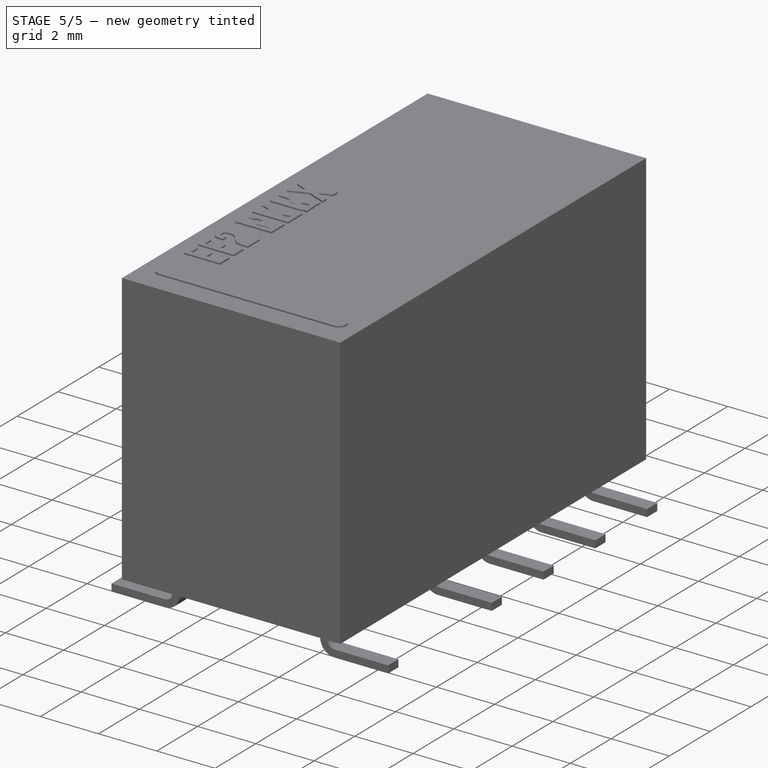
[diagram: stage 5 of 5 — iso view after this stage's code; geometry added in this stage tinted green]
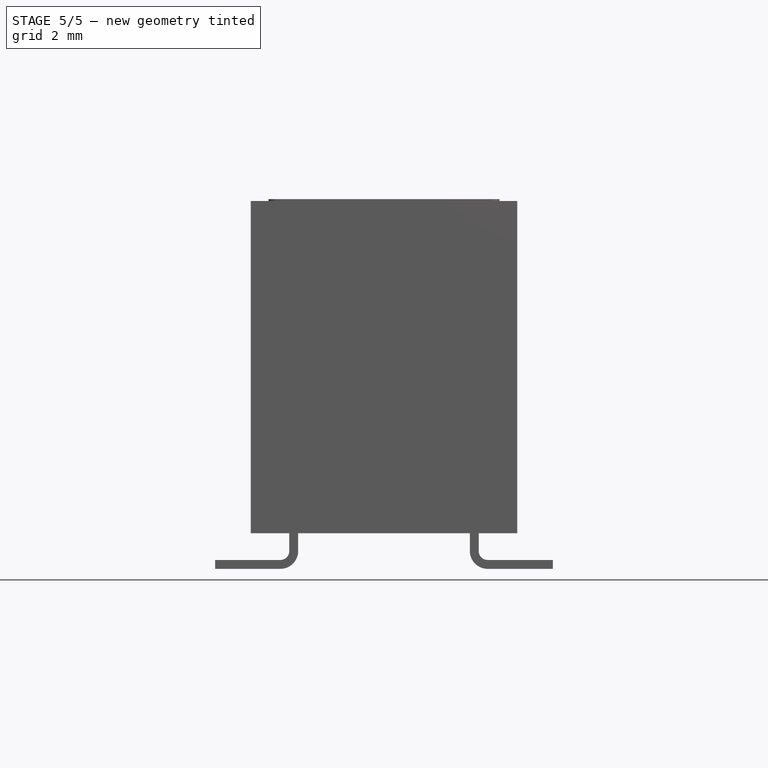
[diagram: stage 5 of 5 — front view after this stage's code; geometry added in this stage tinted green]
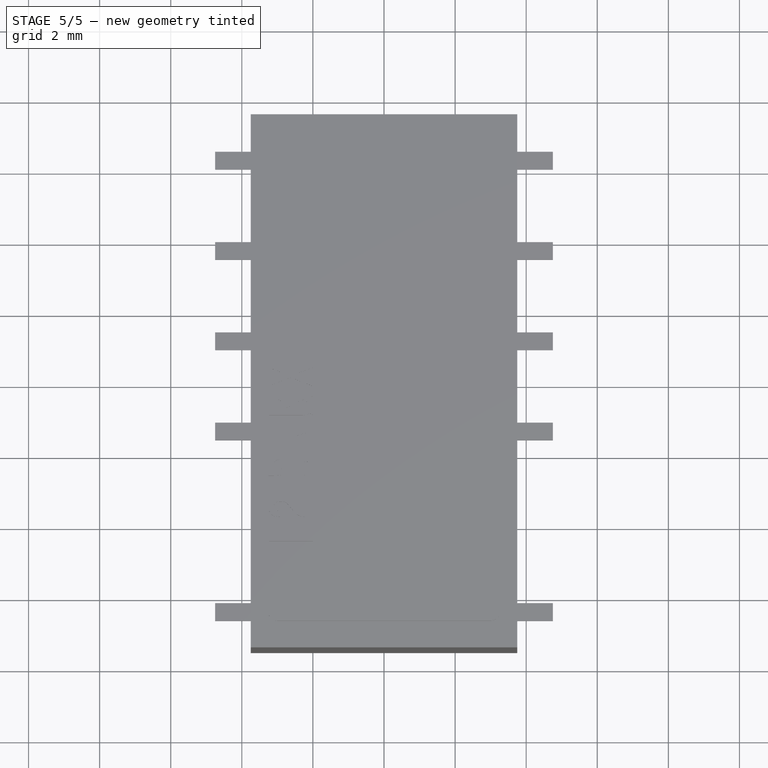
[diagram: stage 5 of 5 — top view after this stage's code; geometry added in this stage tinted green]
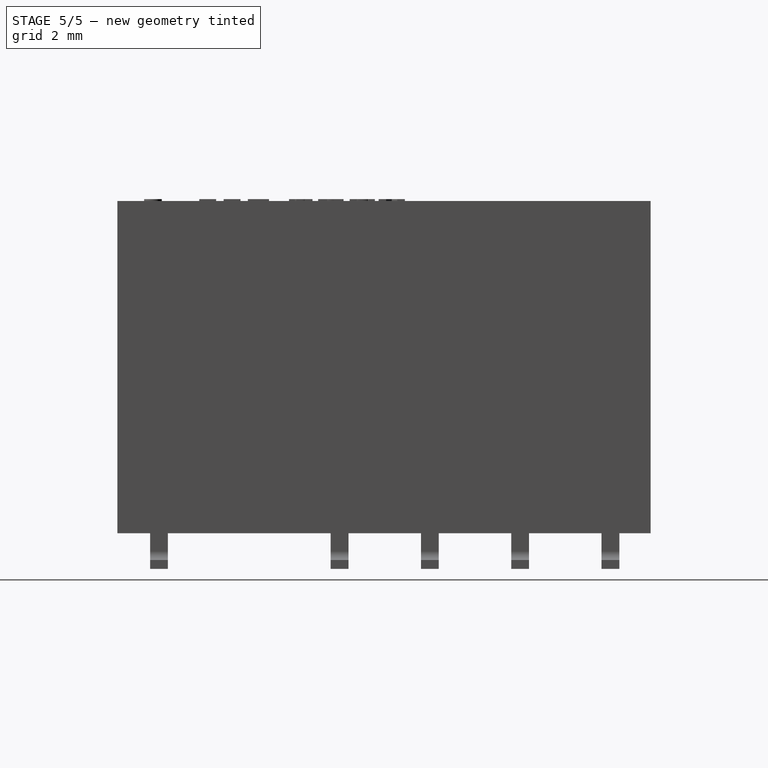
[diagram: stage 5 of 5 — right view after this stage's code; geometry added in this stage tinted green]
FEATURE [Sketcher::SketchObject] Sketch
  MapMode = 5
  Support = -> [XY_Plane]
  sketch-geometry (4):
    g0: LineSegment StartX=3.75 StartY=-7.5 StartZ=0 EndX=-3.75 EndY=-7.5 EndZ=0
    g1: LineSegment StartX=-3.75 StartY=-7.5 StartZ=0 EndX=-3.75 EndY=7.5 EndZ=0
    g2: LineSegment StartX=-3.75 StartY=7.5 StartZ=0 EndX=3.75 EndY=7.5 EndZ=0
    g3: LineSegment StartX=3.75 StartY=7.5 StartZ=0 EndX=3.75 EndY=-7.5 EndZ=0
  constraints (10):
    c: Coincident(g0,g1)
    c: Coincident(g1,g2)
    c: Coincident(g2,g3)
    c: Coincident(g3,g0)
    c: Horizontal(g0)
    c: Vertical(g1)
    c: Symmetric(g1,g2,g-2)
    c: Symmetric(g2,g0,g-1)
    c: DistanceX(g2,g2) = 7.5
    c: DistanceY(g3,g3) = 15
FEATURE [PartDesign::Pad] Pad  label="MainPad"
  Length = 10
  Length2 = 100
  Profile = -> Sketch
  Type = 0
FEATURE [Sketcher::SketchObject] Sketch003
  ExternalGeometry = -> [Pad]
  MapMode = 5
  Placement = pos=(-3.75,0,0) rot=(0.57735,-0.57735,-0.57735;2.0944rad)
  Support = -> [Pad]
  sketch-geometry (4):
    g0: LineSegment StartX=-7.5 StartY=0 StartZ=0 EndX=7.5 EndY=0 EndZ=0
    g1: LineSegment StartX=7.5 StartY=0 StartZ=0 EndX=7.5 EndY=1 EndZ=0
    g2: LineSegment StartX=7.5 StartY=1 StartZ=0 EndX=-7.5 EndY=1 EndZ=0
    g3: LineSegment StartX=-7.5 StartY=1 StartZ=0 EndX=-7.5 EndY=0 EndZ=0
  constraints (11):
    c: Coincident(g0,g1)
    c: Coincident(g1,g2)
    c: Coincident(g2,g3)
    c: Coincident(g3,g0)
    c: Horizontal(g0)
    c: Horizontal(g2)
    c: Vertical(g1)
    c: Vertical(g3)
    c: Coincident(g0,g-3)
    c: PointOnObject(g1,g-4)
    c: DistanceY(g1,g1) = 1
FEATURE [PartDesign::Pocket] Pocket  label="BottomPocket"
  BaseFeature = -> Pad
  Length = 5
  Length2 = 100
  Profile = -> Sketch003
  Type = 1
FEATURE [Sketcher::SketchObject] Sketch007
  ExternalGeometry = -> [Pocket]
  MapMode = 5
  Placement = pos=(0,0,1) rot=(1,0,0;3.14159rad)
  Support = -> [Pocket]
  sketch-geometry (4):
    g0: LineSegment StartX=-3.55 StartY=7.3 StartZ=0 EndX=3.55 EndY=7.3 EndZ=0
    g1: LineSegment StartX=3.55 StartY=7.3 StartZ=0 EndX=3.55 EndY=-7.3 EndZ=0
    g2: LineSegment StartX=3.55 StartY=-7.3 StartZ=0 EndX=-3.55 EndY=-7.3 EndZ=0
    g3: LineSegment StartX=-3.55 StartY=-7.3 StartZ=0 EndX=-3.55 EndY=7.3 EndZ=0
  constraints (10):
    c: Coincident(g0,g1)
    c: Coincident(g1,g2)
    c: Coincident(g2,g3)
    c: Coincident(g3,g0)
    c: Horizontal(g2)
    c: Vertical(g3)
    c: Symmetric(g0,g0,g-2)
    c: Symmetric(g0,g1,g-1)
    c: DistanceX(g0,g-3) = 0.2
    c: DistanceY(g0,g-3) = 0.2
FEATURE [PartDesign::Pocket] Pocket003  label="BottomPocket001"
  BaseFeature = -> Pocket
  Length = 0.1
  Length2 = 100
  Profile = -> Sketch007
  Type = 0
FEATURE [Sketcher::SketchObject] Sketch008
  MapMode = 5
  Placement = pos=(0,0,1.1) rot=(1,0,0;3.14159rad)
  Support = -> [Pocket003]
  sketch-geometry (8):
    g0: LineSegment StartX=-1.62865 StartY=5.15007 StartZ=0 EndX=1.62865 EndY=5.15007 EndZ=0
    g1: LineSegment StartX=2.35483 StartY=4.42389 StartZ=0 EndX=2.35483 EndY=-4.42389 EndZ=0
    g2: LineSegment StartX=1.62865 StartY=-5.15007 StartZ=0 EndX=-1.62865 EndY=-5.15007 EndZ=0
    g3: LineSegment StartX=-2.35483 StartY=-4.42389 StartZ=0 EndX=-2.35483 EndY=4.42389 EndZ=0
    g4: ArcOfCircle CenterX=-1.62865 CenterY=4.42389 CenterZ=0 NormalX=0 NormalY=0 NormalZ=1 AngleXU=0 Radius=0.726182 StartAngle=1.5708 EndAngle=3.14159
    g5: ArcOfCircle CenterX=1.62865 CenterY=4.42389 CenterZ=0 NormalX=0 NormalY=0 NormalZ=1 AngleXU=0 Radius=0.726182 StartAngle=0 EndAngle=1.5708
    g6: ArcOfCircle CenterX=1.62865 CenterY=-4.42389 CenterZ=0 NormalX=0 NormalY=0 NormalZ=1 AngleXU=0 Radius=0.726182 StartAngle=4.71239 EndAngle=6.28319
    g7: ArcOfCircle CenterX=-1.62865 CenterY=-4.42389 CenterZ=0 NormalX=0 NormalY=0 NormalZ=1 AngleXU=0 Radius=0.726182 StartAngle=3.14159 EndAngle=4.71239
  constraints (15):
    c: Horizontal(g0)
    c: Horizontal(g2)
    c: Vertical(g1)
    c: Vertical(g3)
    c: Tangent(g0,g4) = 1.5708
    c: Tangent(g3,g4) = 1.5708
    c: Tangent(g0,g5) = 1.5708
    c: Tangent(g1,g5) = 1.5708
    c: Tangent(g1,g6) = 1.5708
    c: Tangent(g2,g6) = 1.5708
    c: Tangent(g2,g7) = 1.5708
    c: Tangent(g3,g7) = 1.5708
    c: Equal(g7,g6)
    c: Symmetric(g3,g1,g-2)
    c: Symmetric(g0,g2,g-1)
FEATURE [PartDesign::Pad] Pad004  label="BottomPad"
  BaseFeature = -> Pocket003
  Length = 0.05
  Length2 = 100
  Profile = -> Sketch008
  Type = 0
FEATURE [Sketcher::SketchObject] Sketch010
  ExternalGeometry = -> [Pad004]
  MapMode = 5
  Placement = pos=(0,0,10) rot=(0,0,1;0rad)
  Support = -> [Pad004]
  sketch-geometry (4):
    g0: ArcOfCircle CenterX=-3 CenterY=-6.5 CenterZ=0 NormalX=0 NormalY=0 NormalZ=1 AngleXU=0 Radius=0.25 StartAngle=1.5708 EndAngle=4.71239
    g1: ArcOfCircle CenterX=3 CenterY=-6.5 CenterZ=0 NormalX=0 NormalY=0 NormalZ=1 AngleXU=0 Radius=0.25 StartAngle=4.71239 EndAngle=7.85398
    g2: LineSegment StartX=-3 StartY=-6.75 StartZ=0 EndX=3 EndY=-6.75 EndZ=0
    g3: LineSegment StartX=-3 StartY=-6.25 StartZ=0 EndX=3 EndY=-6.25 EndZ=0
  constraints (9):
    c: Tangent(g0,g3) = 1.5708
    c: Tangent(g0,g2) = -1.5708
    c: Tangent(g2,g1) = -1.5708
    c: Tangent(g3,g1) = 1.5708
    c: Horizontal(g2)
    c: Symmetric(g1,g0,g-2)
    c: DistanceY(g1,g1) = 0.5
    c: DistanceY(g-3,g0) = 1
    c: DistanceX(g-3,g0) = 0.75
FEATURE [PartDesign::Pad] Pad006  label="CoilMarkingPad"
  BaseFeature = -> Pad004
  Length = 0.05
  Length2 = 100
  Profile = -> Sketch010
  Type = 0
FEATURE [Sketcher::SketchObject] Sketch011
  MapMode = 5
  Placement = pos=(0,0,0) rot=(1,0,0;1.5708rad)
  Support = -> [XZ_Plane002]
  sketch-geometry (7):
    g0: LineSegment StartX=-2.665 StartY=1.35 StartZ=0 EndX=-2.665 EndY=0.25 EndZ=0
    g1: LineSegment StartX=-2.665 StartY=0.25 StartZ=0 EndX=-4.75 EndY=0.25 EndZ=0
    g2: LineSegment StartX=-4.75 StartY=0.25 StartZ=0 EndX=-4.75 EndY=0 EndZ=0
    g3: LineSegment StartX=-4.75 StartY=0 StartZ=0 EndX=-2.415 EndY=0 EndZ=0
    g4: LineSegment StartX=-2.415 StartY=0 StartZ=0 EndX=-2.415 EndY=1.35 EndZ=0
    g5: LineSegment StartX=-2.415 StartY=1.35 StartZ=0 EndX=-2.665 EndY=1.35 EndZ=0
    g6: GeomPoint X=-2.54 Y=1.35 Z=0
  constraints (19):
    c: Vertical(g0)
    c: Coincident(g0,g1)
    c: Horizontal(g1)
    c: Coincident(g1,g2)
    c: PointOnObject(g2,g-1)
    c: Vertical(g2)
    c: Coincident(g2,g3)
    c: Horizontal(g3)
    c: Coincident(g3,g4)
    c: Vertical(g4)
    c: Coincident(g4,g5)
    c: Coincident(g5,g0)
    c: Horizontal(g5)
    c: DistanceY(g2,g2) = 0.25
    c: Symmetric(g0,g4,g6)
    c: DistanceX(g6,g-1) = 2.54
    c: Equal(g5,g2)
    c: DistanceY(g4,g4) = 1.35
    c: DistanceX(g2,g-1) = 4.75
FEATURE [PartDesign::Pad] Pad007
  Length = 0.5
  Length2 = 100
  Midplane = true
  Placement = pos=(0,0,0) rot=(1,0,0;1.5708rad)
  Profile = -> Sketch011
  Type = 0
FEATURE [PartDesign::Fillet] Fillet
  Base = -> Pad007 [Edge2]
  BaseFeature = -> Pad007
  Placement = pos=(0,0,0) rot=(1,0,0;1.5708rad)
  Radius = 0.25
FEATURE [PartDesign::Fillet] Fillet001
  Base = -> Fillet [Edge20]
  BaseFeature = -> Fillet
  Placement = pos=(0,0,0) rot=(1,0,0;1.5708rad)
  Radius = 0.5
FEATURE [PartDesign::Body] Body001
  Group = -> [Sketch011,Pad007,Fillet,Fillet001]
  Origin = -> Origin002
  Tip = -> Fillet001
FEATURE [PartDesign::FeatureBase] Clone
  BaseFeature = -> Body001
FEATURE [PartDesign::Body] Body002
  BaseFeature = -> Body001
  Group = -> [Clone]
  Origin = -> Origin003
  Placement = pos=(0,-6.33,0) rot=(0,0,1;3.14159rad)
  Tip = -> Clone
FEATURE [Part::Part2DObjectPython] ShapeString  # Draft 2D object (typed FeaturePython)
  AttachmentOffset = pos=(-1,-1,0) rot=(0,0,-1;1.5708rad)
  FontFile = <userpath>/Desktop/GitHub/freecad-projects/00-fonts/coolvetica condensed rg.ttf
  MapMode = 6
  Placement = pos=(-2,-5.25,10) rot=(0,0,1;1.5708rad)
  Size = 0.75
  String = EE2 NU
  Support = -> [Pad006]
  Tracking = 0.125
FEATURE [PartDesign::Pad] Pad008  label="ShapeStringPad"
  BaseFeature = -> Pad006
  Length = 0.05
  Length2 = 100
  Profile = -> ShapeString
  Refine = true
  Type = 0
FEATURE [PartDesign::Body] Body  label="EE2-NU_Body"
  Group = -> [Sketch,Pad,Sketch003,Pocket,Sketch007,Pocket003,Sketch008,Pad004,Sketch010,Pad006,ShapeString,Pad008]
  Origin = -> Origin
  Tip = -> Pad008
FEATURE [PartDesign::FeatureBase] Clone001
  BaseFeature = -> Body001
FEATURE [PartDesign::Body] Body003
  BaseFeature = -> Body001
  Group = -> [Clone001]
  Origin = -> Origin004
  Placement = pos=(0,-6.33,0) rot=(0,0,1;0rad)
  Tip = -> Clone001
FEATURE [PartDesign::FeatureBase] Clone002
  BaseFeature = -> Body002
  Placement = pos=(0,-6.33,0) rot=(0,0,1;3.14159rad)
FEATURE [PartDesign::Body] Body004
  BaseFeature = -> Body002
  Group = -> [Clone002]
  Origin = -> Origin005
  Placement = pos=(0,5.08,0) rot=(0,0,1;0rad)
  Tip = -> Clone002
FEATURE [PartDesign::FeatureBase] Clone003
  BaseFeature = -> Body003
  Placement = pos=(0,-6.33,0) rot=(0,0,1;0rad)
FEATURE [PartDesign::Body] Body005
  BaseFeature = -> Body003
  Group = -> [Clone003]
  Origin = -> Origin006
  Placement = pos=(0,5.08,0) rot=(0,0,1;0rad)
  Tip = -> Clone003
FEATURE [Part::FeaturePython] Array  # Draft array (typed FeaturePython)
  Angle = 360
  ArrayType = 0
  Axis = (0,0,1)
  Base = -> Body004
  Center = (0,0,0)
  Fuse = false
  IntervalAxis = (0,0,0)
  IntervalX = (1,0,0)
  IntervalY = (0,2.54,0)
  IntervalZ = (0,0,1)
  NumberPolar = 1
  NumberX = 1
  NumberY = 3
  NumberZ = 1
FEATURE [Part::FeaturePython] Array001  # Draft array (typed FeaturePython)
  Angle = 360
  ArrayType = 0
  Axis = (0,0,1)
  Base = -> Body005
  Center = (0,0,0)
  Fuse = false
  IntervalAxis = (0,0,0)
  IntervalX = (1,0,0)
  IntervalY = (0,2.54,0)
  IntervalZ = (0,0,1)
  NumberPolar = 1
  NumberX = 1
  NumberY = 3
  NumberZ = 1
FEATURE [Part::MultiFuse] Fusion  label="EE2-NU_Pins"
  Shapes = -> [Body002,Body003,Array,Array001]
FEATURE [App::Part] Part  label="EE2-NU"
  Group = -> [Body,Body001,Body002,Body003,Body004,Body005,Array,Array001,Fusion]
  Origin = -> Origin001
FEATURE [Sketcher::SketchObject] Sketch014
  MapMode = 5
  Support = -> [XY_Plane013]
  sketch-geometry (4):
    g0: LineSegment StartX=3.75 StartY=-7.5 StartZ=0 EndX=-3.75 EndY=-7.5 EndZ=0
    g1: LineSegment StartX=-3.75 StartY=-7.5 StartZ=0 EndX=-3.75 EndY=7.5 EndZ=0
    g2: LineSegment StartX=-3.75 StartY=7.5 StartZ=0 EndX=3.75 EndY=7.5 EndZ=0
    g3: LineSegment StartX=3.75 StartY=7.5 StartZ=0 EndX=3.75 EndY=-7.5 EndZ=0
  constraints (10):
    c: Coincident(g0,g1)
    c: Coincident(g1,g2)
    c: Coincident(g2,g3)
    c: Coincident(g3,g0)
    c: Horizontal(g0)
    c: Vertical(g1)
    c: Symmetric(g1,g2,g-2)
    c: Symmetric(g2,g0,g-1)
    c: DistanceX(g2,g2) = 7.5
    c: DistanceY(g3,g3) = 15
FEATURE [PartDesign::Pad] Pad011  label="MainPad001"
  Length = 10
  Length2 = 100
  Profile = -> Sketch014
  Type = 0
FEATURE [Sketcher::SketchObject] Sketch013
  ExternalGeometry = -> [Pad011]
  MapMode = 5
  Placement = pos=(-3.75,0,0) rot=(0.57735,-0.57735,-0.57735;2.0944rad)
  Support = -> [Pad011]
  sketch-geometry (4):
    g0: LineSegment StartX=-7.5 StartY=0 StartZ=0 EndX=7.5 EndY=0 EndZ=0
    g1: LineSegment StartX=7.5 StartY=0 StartZ=0 EndX=7.5 EndY=1 EndZ=0
    g2: LineSegment StartX=7.5 StartY=1 StartZ=0 EndX=-7.5 EndY=1 EndZ=0
    g3: LineSegment StartX=-7.5 StartY=1 StartZ=0 EndX=-7.5 EndY=0 EndZ=0
  constraints (11):
    c: Coincident(g0,g1)
    c: Coincident(g1,g2)
    c: Coincident(g2,g3)
    c: Coincident(g3,g0)
    c: Horizontal(g0)
    c: Horizontal(g2)
    c: Vertical(g1)
    c: Vertical(g3)
    c: Coincident(g0,g-3)
    c: PointOnObject(g1,g-4)
    c: DistanceY(g1,g1) = 1
FEATURE [PartDesign::Pocket] Pocket004  label="BottomPocket002"
  BaseFeature = -> Pad011
  Length = 5
  Length2 = 100
  Profile = -> Sketch013
  Type = 1
FEATURE [Sketcher::SketchObject] Sketch012
  ExternalGeometry = -> [Pocket004]
  MapMode = 5
  Placement = pos=(0,0,1) rot=(1,0,0;3.14159rad)
  Support = -> [Pocket004]
  sketch-geometry (4):
    g0: LineSegment StartX=-3.55 StartY=7.3 StartZ=0 EndX=3.55 EndY=7.3 EndZ=0
    g1: LineSegment StartX=3.55 StartY=7.3 StartZ=0 EndX=3.55 EndY=-7.3 EndZ=0
    g2: LineSegment StartX=3.55 StartY=-7.3 StartZ=0 EndX=-3.55 EndY=-7.3 EndZ=0
    g3: LineSegment StartX=-3.55 StartY=-7.3 StartZ=0 EndX=-3.55 EndY=7.3 EndZ=0
  constraints (10):
    c: Coincident(g0,g1)
    c: Coincident(g1,g2)
    c: Coincident(g2,g3)
    c: Coincident(g3,g0)
    c: Horizontal(g2)
    c: Vertical(g3)
    c: Symmetric(g0,g0,g-2)
    c: Symmetric(g0,g1,g-1)
    c: DistanceX(g0,g-3) = 0.2
    c: DistanceY(g0,g-3) = 0.2
FEATURE [PartDesign::Pocket] Pocket005  label="BottomPocket003"
  BaseFeature = -> Pocket004
  Length = 0.1
  Length2 = 100
  Profile = -> Sketch012
  Type = 0
FEATURE [Sketcher::SketchObject] Sketch016
  MapMode = 5
  Placement = pos=(0,0,1.1) rot=(1,0,0;3.14159rad)
  Support = -> [Pocket005]
  sketch-geometry (8):
    g0: LineSegment StartX=-1.62865 StartY=5.15007 StartZ=0 EndX=1.62865 EndY=5.15007 EndZ=0
    g1: LineSegment StartX=2.35483 StartY=4.42389 StartZ=0 EndX=2.35483 EndY=-4.42389 EndZ=0
    g2: LineSegment StartX=1.62865 StartY=-5.15007 StartZ=0 EndX=-1.62865 EndY=-5.15007 EndZ=0
    g3: LineSegment StartX=-2.35483 StartY=-4.42389 StartZ=0 EndX=-2.35483 EndY=4.42389 EndZ=0
    g4: ArcOfCircle CenterX=-1.62865 CenterY=4.42389 CenterZ=0 NormalX=0 NormalY=0 NormalZ=1 AngleXU=0 Radius=0.726182 StartAngle=1.5708 EndAngle=3.14159
    g5: ArcOfCircle CenterX=1.62865 CenterY=4.42389 CenterZ=0 NormalX=0 NormalY=0 NormalZ=1 AngleXU=0 Radius=0.726182 StartAngle=0 EndAngle=1.5708
    g6: ArcOfCircle CenterX=1.62865 CenterY=-4.42389 CenterZ=0 NormalX=0 NormalY=0 NormalZ=1 AngleXU=0 Radius=0.726182 StartAngle=4.71239 EndAngle=6.28319
    g7: ArcOfCircle CenterX=-1.62865 CenterY=-4.42389 CenterZ=0 NormalX=0 NormalY=0 NormalZ=1 AngleXU=0 Radius=0.726182 StartAngle=3.14159 EndAngle=4.71239
  constraints (15):
    c: Horizontal(g0)
    c: Horizontal(g2)
    c: Vertical(g1)
    c: Vertical(g3)
    c: Tangent(g0,g4) = 1.5708
    c: Tangent(g3,g4) = 1.5708
    c: Tangent(g0,g5) = 1.5708
    c: Tangent(g1,g5) = 1.5708
    c: Tangent(g1,g6) = 1.5708
    c: Tangent(g2,g6) = 1.5708
    c: Tangent(g2,g7) = 1.5708
    c: Tangent(g3,g7) = 1.5708
    c: Equal(g7,g6)
    c: Symmetric(g3,g1,g-2)
    c: Symmetric(g0,g2,g-1)
FEATURE [PartDesign::Pad] Pad013  label="BottomPad001"
  BaseFeature = -> Pocket005
  Length = 0.05
  Length2 = 100
  Profile = -> Sketch016
  Type = 0
FEATURE [Sketcher::SketchObject] Sketch015
  ExternalGeometry = -> [Pad013]
  MapMode = 5
  Placement = pos=(0,0,10) rot=(0,0,1;0rad)
  Support = -> [Pad013]
  sketch-geometry (4):
    g0: ArcOfCircle CenterX=-3 CenterY=-6.5 CenterZ=0 NormalX=0 NormalY=0 NormalZ=1 AngleXU=0 Radius=0.25 StartAngle=1.5708 EndAngle=4.71239
    g1: ArcOfCircle CenterX=3 CenterY=-6.5 CenterZ=0 NormalX=0 NormalY=0 NormalZ=1 AngleXU=0 Radius=0.25 StartAngle=4.71239 EndAngle=7.85398
    g2: LineSegment StartX=-3 StartY=-6.75 StartZ=0 EndX=3 EndY=-6.75 EndZ=0
    g3: LineSegment StartX=-3 StartY=-6.25 StartZ=0 EndX=3 EndY=-6.25 EndZ=0
  constraints (9):
    c: Tangent(g0,g3) = 1.5708
    c: Tangent(g0,g2) = -1.5708
    c: Tangent(g2,g1) = -1.5708
    c: Tangent(g3,g1) = 1.5708
    c: Horizontal(g2)
    c: Symmetric(g1,g0,g-2)
    c: DistanceY(g1,g1) = 0.5
    c: DistanceY(g-3,g0) = 1
    c: DistanceX(g-3,g0) = 0.75
FEATURE [PartDesign::Pad] Pad010  label="CoilMarkingPad001"
  BaseFeature = -> Pad013
  Length = 0.05
  Length2 = 100
  Profile = -> Sketch015
  Type = 0
FEATURE [Part::Part2DObjectPython] ShapeString001  # Draft 2D object (typed FeaturePython)
  AttachmentOffset = pos=(-1,-1,0) rot=(0,0,-1;1.5708rad)
  FontFile = <userpath>/Desktop/GitHub/freecad-projects/00-fonts/coolvetica condensed rg.ttf
  MapMode = 6
  Placement = pos=(-2,-5.25,10) rot=(0,0,1;1.5708rad)
  Size = 0.75
  String = EE2 NUH
  Support = -> [Pad010]
  Tracking = 0.125
FEATURE [PartDesign::Pad] Pad009  label="ShapeStringPad001"
  BaseFeature = -> Pad010
  Length = 0.05
  Length2 = 100
  Profile = -> ShapeString001
  Refine = true
  Type = 0
FEATURE [PartDesign::Body] Body008  label="EE2-NUH_Body"
  Group = -> [Sketch014,Pad011,Sketch013,Pocket004,Sketch012,Pocket005,Sketch016,Pad013,Sketch015,Pad010,ShapeString001,Pad009]
  Origin = -> Origin012
  Tip = -> Pad009
FEATURE [Sketcher::SketchObject] Sketch017
  MapMode = 5
  Placement = pos=(0,0,0) rot=(1,0,0;1.5708rad)
  Support = -> [XZ_Plane007]
  sketch-geometry (7):
    g0: LineSegment StartX=-2.665 StartY=1.35 StartZ=0 EndX=-2.665 EndY=0.25 EndZ=0
    g1: LineSegment StartX=-2.665 StartY=0.25 StartZ=0 EndX=-3.75 EndY=0.25 EndZ=0
    g2: LineSegment StartX=-3.75 StartY=0.25 StartZ=0 EndX=-3.75 EndY=0 EndZ=0
    g3: LineSegment StartX=-3.75 StartY=0 StartZ=0 EndX=-2.415 EndY=0 EndZ=0
    g4: LineSegment StartX=-2.415 StartY=0 StartZ=0 EndX=-2.415 EndY=1.35 EndZ=0
    g5: LineSegment StartX=-2.415 StartY=1.35 StartZ=0 EndX=-2.665 EndY=1.35 EndZ=0
    g6: GeomPoint X=-2.54 Y=1.35 Z=0
  constraints (19):
    c: Vertical(g0)
    c: Coincident(g0,g1)
    c: Horizontal(g1)
    c: Coincident(g1,g2)
    c: PointOnObject(g2,g-1)
    c: Vertical(g2)
    c: Coincident(g2,g3)
    c: Horizontal(g3)
    c: Coincident(g3,g4)
    c: Vertical(g4)
    c: Coincident(g4,g5)
    c: Coincident(g5,g0)
    c: Horizontal(g5)
    c: DistanceY(g2,g2) = 0.25
    c: Symmetric(g0,g4,g6)
    c: DistanceX(g6,g-1) = 2.54
    c: Equal(g5,g2)
    c: DistanceY(g4,g4) = 1.35
    c: DistanceX(g2,g-1) = 3.75
FEATURE [PartDesign::Pad] Pad012
  Length = 0.5
  Length2 = 100
  Midplane = true
  Placement = pos=(0,0,0) rot=(1,0,0;1.5708rad)
  Profile = -> Sketch017
  Type = 0
FEATURE [PartDesign::Fillet] Fillet002
  Base = -> Pad012 [Edge2]
  BaseFeature = -> Pad012
  Placement = pos=(0,0,0) rot=(1,0,0;1.5708rad)
  Radius = 0.25
FEATURE [PartDesign::Fillet] Fillet003
  Base = -> Fillet002 [Edge20]
  BaseFeature = -> Fillet002
  Placement = pos=(0,0,0) rot=(1,0,0;1.5708rad)
  Radius = 0.5
FEATURE [PartDesign::Body] Body010
  Group = -> [Sketch017,Pad012,Fillet002,Fillet003]
  Origin = -> Origin010
  Tip = -> Fillet003
FEATURE [PartDesign::FeatureBase] Clone004
  BaseFeature = -> Body010
FEATURE [PartDesign::Body] Body011
  BaseFeature = -> Body010
  Group = -> [Clone004]
  Origin = -> Origin013
  Placement = pos=(0,-6.33,0) rot=(0,0,1;0rad)
  Tip = -> Clone004
FEATURE [PartDesign::FeatureBase] Clone005
  BaseFeature = -> Body010
FEATURE [PartDesign::Body] Body012
  BaseFeature = -> Body010
  Group = -> [Clone005]
  Origin = -> Origin014
  Placement = pos=(0,-6.33,0) rot=(0,0,1;3.14159rad)
  Tip = -> Clone005
FEATURE [PartDesign::FeatureBase] Clone006
  BaseFeature = -> Body011
  Placement = pos=(0,-6.33,0) rot=(0,0,1;0rad)
FEATURE [PartDesign::Body] Body013
  BaseFeature = -> Body011
  Group = -> [Clone006]
  Origin = -> Origin015
  Placement = pos=(0,5.08,0) rot=(0,0,1;0rad)
  Tip = -> Clone006
FEATURE [PartDesign::FeatureBase] Clone007
  BaseFeature = -> Body012
  Placement = pos=(0,-6.33,0) rot=(0,0,1;3.14159rad)
FEATURE [PartDesign::Body] Body014
  BaseFeature = -> Body012
  Group = -> [Clone007]
  Origin = -> Origin016
  Placement = pos=(0,5.08,0) rot=(0,0,1;0rad)
  Tip = -> Clone007
FEATURE [Part::FeaturePython] Array002  # Draft array (typed FeaturePython)
  Angle = 360
  ArrayType = 0
  Axis = (0,0,1)
  Base = -> Body013
  Center = (0,0,0)
  Fuse = false
  IntervalAxis = (0,0,0)
  IntervalX = (1,0,0)
  IntervalY = (0,2.54,0)
  IntervalZ = (0,0,1)
  NumberPolar = 1
  NumberX = 1
  NumberY = 3
  NumberZ = 1
FEATURE [Part::FeaturePython] Array003  # Draft array (typed FeaturePython)
  Angle = 360
  ArrayType = 0
  Axis = (0,0,1)
  Base = -> Body014
  Center = (0,0,0)
  Fuse = false
  IntervalAxis = (0,0,0)
  IntervalX = (1,0,0)
  IntervalY = (0,2.54,0)
  IntervalZ = (0,0,1)
  NumberPolar = 1
  NumberX = 1
  NumberY = 3
  NumberZ = 1
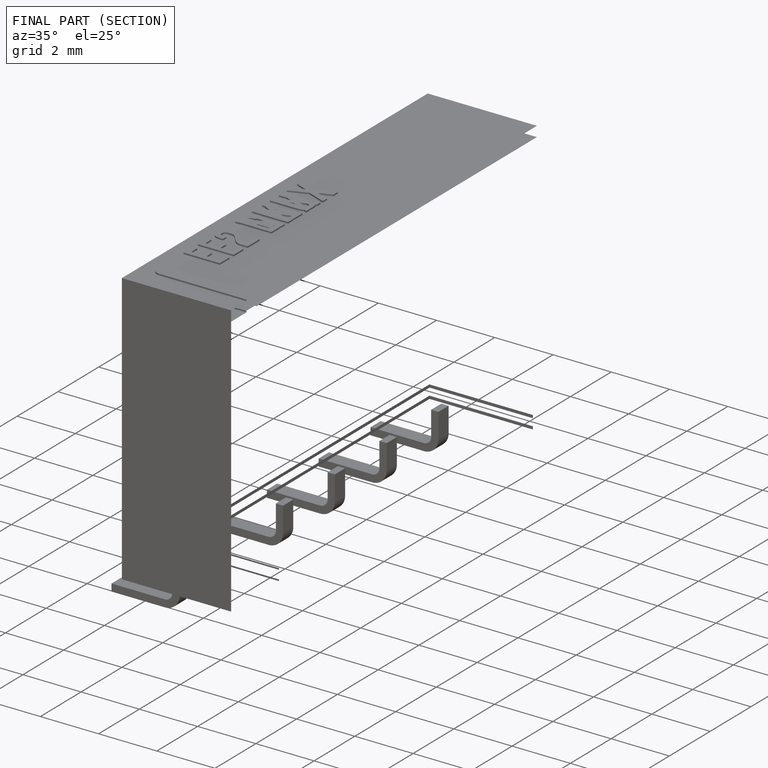
[diagram: finished part — half-section view (interior)]
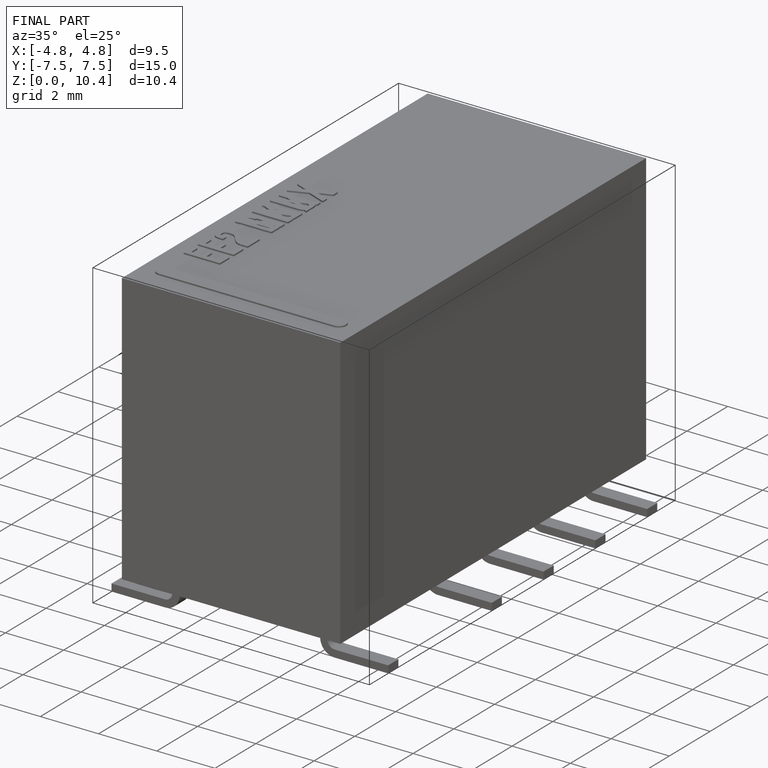
[diagram: finished part — iso view with bounding-box wireframe]
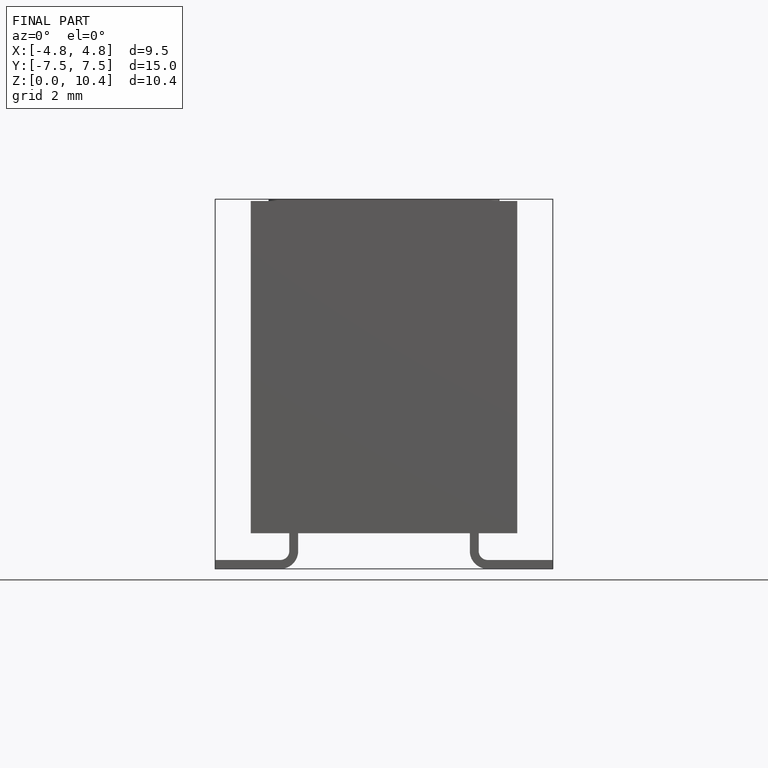
[diagram: finished part — front view with bounding-box wireframe]
